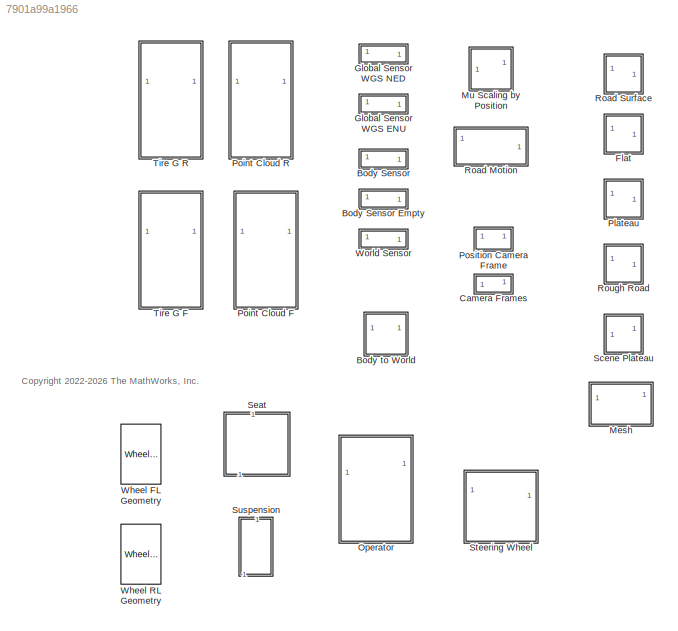
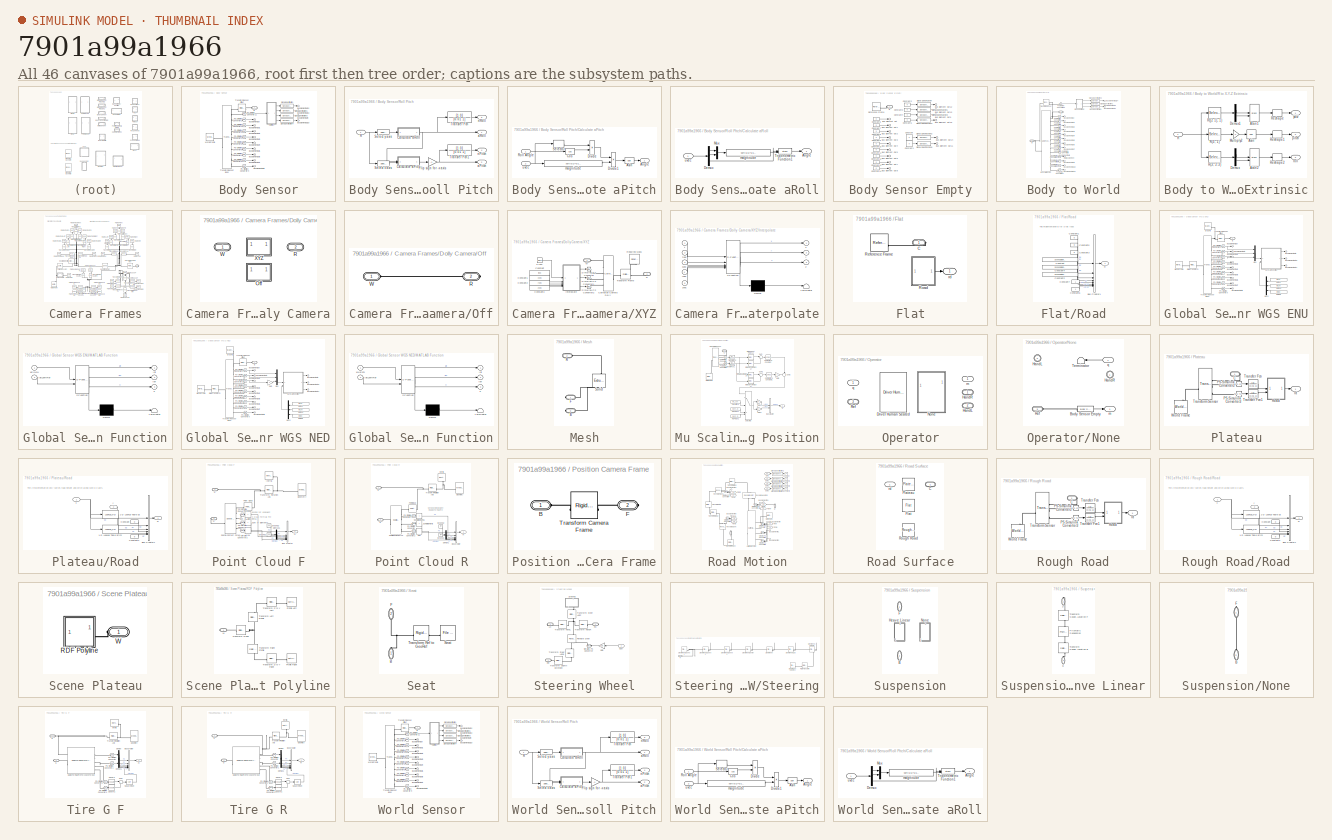
[diagram: thumbnail index - all 46 canvases of the model, root first then tree order]
MODEL slx_7901a99a1966
KIND library
CONFIG SolverName = VariableStepAuto
BLOCK [SubSystem] Body Sensor
BLOCK [SubSystem] Body Sensor Empty
BLOCK [PMIOPort] Body Sensor Empty/B
  NameLocation = top
  Side = Left
BLOCK [Outport] Body Sensor Empty/Bus Element Out
  VectorParamsAs1DForOutWhenUnconnected = off
BLOCK [Outport] Body Sensor Empty/Bus Element Out1
  VectorParamsAs1DForOutWhenUnconnected = off
BLOCK [Outport] Body Sensor Empty/Bus Element Out10
  VectorParamsAs1DForOutWhenUnconnected = off
BLOCK [Outport] Body Sensor Empty/Bus Element Out11
  VectorParamsAs1DForOutWhenUnconnected = off
BLOCK [Outport] Body Sensor Empty/Bus Element Out12
  VectorParamsAs1DForOutWhenUnconnected = off
BLOCK [Outport] Body Sensor Empty/Bus Element Out13
  VectorParamsAs1DForOutWhenUnconnected = off
BLOCK [Outport] Body Sensor Empty/Bus Element Out14
  VectorParamsAs1DForOutWhenUnconnected = off
BLOCK [Outport] Body Sensor Empty/Bus Element Out2
  VectorParamsAs1DForOutWhenUnconnected = off
BLOCK [Outport] Body Sensor Empty/Bus Element Out3
  VectorParamsAs1DForOutWhenUnconnected = off
BLOCK [Outport] Body Sensor Empty/Bus Element Out4
  VectorParamsAs1DForOutWhenUnconnected = off
BLOCK [Outport] Body Sensor Empty/Bus Element Out5
  VectorParamsAs1DForOutWhenUnconnected = off
BLOCK [Outport] Body Sensor Empty/Bus Element Out6
  VectorParamsAs1DForOutWhenUnconnected = off
BLOCK [Outport] Body Sensor Empty/Bus Element Out7
  VectorParamsAs1DForOutWhenUnconnected = off
BLOCK [Outport] Body Sensor Empty/Bus Element Out8
  VectorParamsAs1DForOutWhenUnconnected = off
BLOCK [Outport] Body Sensor Empty/Bus Element Out9
  VectorParamsAs1DForOutWhenUnconnected = off
BLOCK [Constant] Body Sensor Empty/Constant
  Value = 0
BLOCK [Constant] Body Sensor Empty/Constant1
  Value = 0
BLOCK [Constant] Body Sensor Empty/Constant10
  Value = 0
BLOCK [Constant] Body Sensor Empty/Constant11
  Value = 0
BLOCK [Constant] Body Sensor Empty/Constant12
  Value = 0
BLOCK [Constant] Body Sensor Empty/Constant13
  Value = 0
BLOCK [Constant] Body Sensor Empty/Constant14
  Value = 0
BLOCK [Constant] Body Sensor Empty/Constant2
  Value = 0
BLOCK [Constant] Body Sensor Empty/Constant3
  Value = 0
BLOCK [Constant] Body Sensor Empty/Constant4
  Value = 0
BLOCK [Constant] Body Sensor Empty/Constant5
  Value = 0
BLOCK [Constant] Body Sensor Empty/Constant6
  Value = 0
BLOCK [Constant] Body Sensor Empty/Constant7
  Value = 0
BLOCK [Constant] Body Sensor Empty/Constant8
  Value = 0
BLOCK [Constant] Body Sensor Empty/Constant9
  Value = 0
BLOCK [Reference] Body Sensor Empty/Reference Frame  REF=sm_lib/Frames and
Transforms/Reference
Frame
  SourceBlock = sm_lib/Frames and\nTransforms/Reference\nFrame
  SourceType = Reference\nFrame
BLOCK [SignalSpecification] Body Sensor Empty/Signal Specification
  Unit = rad
BLOCK [SignalSpecification] Body Sensor Empty/Signal Specification1
  Unit = rad
BLOCK [SignalSpecification] Body Sensor Empty/Signal Specification2
  Unit = rad
BLOCK [SignalSpecification] Body Sensor Empty/Signal Specification3
  Unit = rad/s
BLOCK [SignalSpecification] Body Sensor Empty/Signal Specification4
  Unit = rad/s
BLOCK [SignalSpecification] Body Sensor Empty/Signal Specification5
  Unit = rad/s
BLOCK [PMIOPort] Body Sensor/B
  NameLocation = top
  Side = Left
BLOCK [Outport] Body Sensor/Bus Element Out
  VectorParamsAs1DForOutWhenUnconnected = off
BLOCK [Outport] Body Sensor/Bus Element Out1
  VectorParamsAs1DForOutWhenUnconnected = off
BLOCK [Outport] Body Sensor/Bus Element Out10
  VectorParamsAs1DForOutWhenUnconnected = off
BLOCK [Outport] Body Sensor/Bus Element Out12
  VectorParamsAs1DForOutWhenUnconnected = off
BLOCK [Outport] Body Sensor/Bus Element Out13
  VectorParamsAs1DForOutWhenUnconnected = off
BLOCK [Outport] Body Sensor/Bus Element Out2
  VectorParamsAs1DForOutWhenUnconnected = off
BLOCK [Outport] Body Sensor/Bus Element Out3
  VectorParamsAs1DForOutWhenUnconnected = off
BLOCK [Outport] Body Sensor/Bus Element Out4
  VectorParamsAs1DForOutWhenUnconnected = off
BLOCK [Outport] Body Sensor/Bus Element Out5
  VectorParamsAs1DForOutWhenUnconnected = off
BLOCK [Outport] Body Sensor/Bus Element Out6
  VectorParamsAs1DForOutWhenUnconnected = off
BLOCK [Outport] Body Sensor/Bus Element Out7
  VectorParamsAs1DForOutWhenUnconnected = off
BLOCK [Outport] Body Sensor/Bus Element Out8
  VectorParamsAs1DForOutWhenUnconnected = off
BLOCK [Outport] Body Sensor/Bus Element Out9
  VectorParamsAs1DForOutWhenUnconnected = off
BLOCK [Reference] Body Sensor/PS-Simulink Converter1  REF=nesl_utility/PS-Simulink
Converter
  SourceBlock = nesl_utility/PS-Simulink\nConverter
  SourceType = PS-Simulink\nConverter
BLOCK [Reference] Body Sensor/PS-Simulink Converter11  REF=nesl_utility/PS-Simulink
Converter
  SourceBlock = nesl_utility/PS-Simulink\nConverter
  SourceType = PS-Simulink\nConverter
BLOCK [Reference] Body Sensor/PS-Simulink Converter2  REF=nesl_utility/PS-Simulink
Converter
  SourceBlock = nesl_utility/PS-Simulink\nConverter
  SourceType = PS-Simulink\nConverter
BLOCK [Reference] Body Sensor/PS-Simulink Converter3  REF=nesl_utility/PS-Simulink
Converter
  SourceBlock = nesl_utility/PS-Simulink\nConverter
  SourceType = PS-Simulink\nConverter
BLOCK [Reference] Body Sensor/PS-Simulink Converter4  REF=nesl_utility/PS-Simulink
Converter
  SourceBlock = nesl_utility/PS-Simulink\nConverter
  SourceType = PS-Simulink\nConverter
BLOCK [Reference] Body Sensor/PS-Simulink Converter5  REF=nesl_utility/PS-Simulink
Converter
  SourceBlock = nesl_utility/PS-Simulink\nConverter
  SourceType = PS-Simulink\nConverter
BLOCK [Reference] Body Sensor/PS-Simulink Converter6  REF=nesl_utility/PS-Simulink
Converter
  SourceBlock = nesl_utility/PS-Simulink\nConverter
  SourceType = PS-Simulink\nConverter
BLOCK [Reference] Body Sensor/PS-Simulink Converter7  REF=nesl_utility/PS-Simulink
Converter
  SourceBlock = nesl_utility/PS-Simulink\nConverter
  SourceType = PS-Simulink\nConverter
BLOCK [Reference] Body Sensor/PS-Simulink Converter8  REF=nesl_utility/PS-Simulink
Converter
  SourceBlock = nesl_utility/PS-Simulink\nConverter
  SourceType = PS-Simulink\nConverter
BLOCK [Reference] Body Sensor/PS-Simulink Converter9  REF=nesl_utility/PS-Simulink
Converter
  SourceBlock = nesl_utility/PS-Simulink\nConverter
  SourceType = PS-Simulink\nConverter
BLOCK [SubSystem] Body Sensor/Roll Pitch
BLOCK [SubSystem] Body Sensor/Roll Pitch/Calculate aPitch
BLOCK [Outport] Body Sensor/Roll Pitch/Calculate aPitch/Angle
  VectorParamsAs1DForOutWhenUnconnected = off
BLOCK [Trigonometry] Body Sensor/Roll Pitch/Calculate aPitch/Asin
  Operator = asin
BLOCK [Trigonometry] Body Sensor/Roll Pitch/Calculate aPitch/Cos
  Operator = cos
BLOCK [Product] Body Sensor/Roll Pitch/Calculate aPitch/Divide
  Inputs = */
BLOCK [Product] Body Sensor/Roll Pitch/Calculate aPitch/Divide1
  Inputs = */
BLOCK [Inport] Body Sensor/Roll Pitch/Calculate aPitch/Roll Angle
BLOCK [Selector] Body Sensor/Roll Pitch/Calculate aPitch/Selector
  IndexOptions = Index vector (dialog)
  Indices = [3]
  InputPortWidth = 3
  NameLocation = top
  OutputSizes = 1
BLOCK [Fcn] Body Sensor/Roll Pitch/Calculate aPitch/magnitude
  Expr = sqrt(u(1)*u(1)+u(2)*u(2)+u(3)*u(3))
BLOCK [Inport] Body Sensor/Roll Pitch/Calculate aPitch/uvec
  Port = 2
BLOCK [SubSystem] Body Sensor/Roll Pitch/Calculate aRoll
BLOCK [Outport] Body Sensor/Roll Pitch/Calculate aRoll/Angle
  VectorParamsAs1DForOutWhenUnconnected = off
BLOCK [Demux] Body Sensor/Roll Pitch/Calculate aRoll/Demux
  Outputs = 3
BLOCK [Mux] Body Sensor/Roll Pitch/Calculate aRoll/Mux
  DisplayOption = bar
  Inputs = 2
BLOCK [Trigonometry] Body Sensor/Roll Pitch/Calculate aRoll/Trigonometric Function1
  Operator = atan2
BLOCK [Fcn] Body Sensor/Roll Pitch/Calculate aRoll/magnitude
  Expr = sqrt(u(1)*u(1)+u(2)*u(2))
BLOCK [Inport] Body Sensor/Roll Pitch/Calculate aRoll/uvec
BLOCK [Gain] Body Sensor/Roll Pitch/Flip sign for -x axis 
  Gain = -1
BLOCK [Inport] Body Sensor/Roll Pitch/R
BLOCK [Selector] Body Sensor/Roll Pitch/Select x axis
  IndexOptions = Index vector (dialog),Index vector (dialog)
  Indices = [1 2 3],1
  InputPortWidth = 2
  NumberOfDimensions = 2
  OutputSizes = 1,1
BLOCK [Selector] Body Sensor/Roll Pitch/Select y axis
  IndexOptions = Index vector (dialog),Index vector (dialog)
  Indices = [1 2 3],2
  InputPortWidth = 2
  NumberOfDimensions = 2
  OutputSizes = 1,1
BLOCK [TransferFcn] Body Sensor/Roll Pitch/Transfer Fcn
  Denominator = [0.01 1]
  NameLocation = top
  Numerator = [1 0]
BLOCK [TransferFcn] Body Sensor/Roll Pitch/Transfer Fcn1
  Denominator = [0.01 1]
  NameLocation = top
  Numerator = [1 0]
BLOCK [Outport] Body Sensor/Roll Pitch/aPitch
  Port = 2
  VectorParamsAs1DForOutWhenUnconnected = off
BLOCK [Outport] Body Sensor/Roll Pitch/aRoll
  VectorParamsAs1DForOutWhenUnconnected = off
BLOCK [Outport] Body Sensor/Roll Pitch/nPitch
  Port = 4
  VectorParamsAs1DForOutWhenUnconnected = off
BLOCK [Outport] Body Sensor/Roll Pitch/nRoll
  Port = 3
  VectorParamsAs1DForOutWhenUnconnected = off
BLOCK [SignalSpecification] Body Sensor/Signal Specification
  Unit = rad
BLOCK [SignalSpecification] Body Sensor/Signal Specification1
  Unit = rad
BLOCK [SignalSpecification] Body Sensor/Signal Specification3
  Unit = rad/s
BLOCK [SignalSpecification] Body Sensor/Signal Specification4
  Unit = rad/s
BLOCK [Reference] Body Sensor/Transform Sensor Body  REF=sm_lib/Frames and
Transforms/Transform
Sensor
  AttributesFormatString = %<MeasurementFrame>
  SourceBlock = sm_lib/Frames and\nTransforms/Transform\nSensor
  SourceType = Transform\nSensor
BLOCK [Reference] Body Sensor/Transform Sensor Offset  REF=sm_lib/Frames and
Transforms/Rigid
Transform
  NameLocation = top
  SourceBlock = sm_lib/Frames and\nTransforms/Rigid\nTransform
  SourceType = Rigid\nTransform
BLOCK [Reference] Body Sensor/World Frame  REF=sm_lib/Frames and
Transforms/World Frame
  SourceBlock = sm_lib/Frames and\nTransforms/World Frame
  SourceType = World Frame
BLOCK [SubSystem] Body to World
BLOCK [PMIOPort] Body to World/B
  Port = 2
  Side = Left
BLOCK [Reference] Body to World/Body World Joint  REF=sm_lib/Joints/6-DOF Joint
  SourceBlock = sm_lib/Joints/6-DOF Joint
  SourceType = 6-DOF Joint
BLOCK [Outport] Body to World/Bus Element Out
  VectorParamsAs1DForOutWhenUnconnected = off
BLOCK [Outport] Body to World/Bus Element Out1
  VectorParamsAs1DForOutWhenUnconnected = off
BLOCK [Outport] Body to World/Bus Element Out10
  VectorParamsAs1DForOutWhenUnconnected = off
BLOCK [Outport] Body to World/Bus Element Out11
  VectorParamsAs1DForOutWhenUnconnected = off
BLOCK [Outport] Body to World/Bus Element Out12
  VectorParamsAs1DForOutWhenUnconnected = off
BLOCK [Outport] Body to World/Bus Element Out13
  VectorParamsAs1DForOutWhenUnconnected = off
BLOCK [Outport] Body to World/Bus Element Out14
  VectorParamsAs1DForOutWhenUnconnected = off
BLOCK [Outport] Body to World/Bus Element Out2
  VectorParamsAs1DForOutWhenUnconnected = off
BLOCK [Outport] Body to World/Bus Element Out3
  VectorParamsAs1DForOutWhenUnconnected = off
BLOCK [Outport] Body to World/Bus Element Out4
  VectorParamsAs1DForOutWhenUnconnected = off
BLOCK [Outport] Body to World/Bus Element Out5
  VectorParamsAs1DForOutWhenUnconnected = off
BLOCK [Outport] Body to World/Bus Element Out6
  VectorParamsAs1DForOutWhenUnconnected = off
BLOCK [Outport] Body to World/Bus Element Out7
  VectorParamsAs1DForOutWhenUnconnected = off
BLOCK [Outport] Body to World/Bus Element Out8
  VectorParamsAs1DForOutWhenUnconnected = off
BLOCK [Outport] Body to World/Bus Element Out9
  VectorParamsAs1DForOutWhenUnconnected = off
BLOCK [PMIOPort] Body to World/F
  Side = Right
BLOCK [Outport] Body to World/Out Bus Element
  VectorParamsAs1DForOutWhenUnconnected = off
BLOCK [Reference] Body to World/PS-Simulink Converter  REF=nesl_utility/PS-Simulink
Converter
  SourceBlock = nesl_utility/PS-Simulink\nConverter
  SourceType = PS-Simulink\nConverter
BLOCK [Reference] Body to World/PS-Simulink Converter1  REF=nesl_utility/PS-Simulink
Converter
  SourceBlock = nesl_utility/PS-Simulink\nConverter
  SourceType = PS-Simulink\nConverter
BLOCK [Reference] Body to World/PS-Simulink Converter10  REF=nesl_utility/PS-Simulink
Converter
  SourceBlock = nesl_utility/PS-Simulink\nConverter
  SourceType = PS-Simulink\nConverter
BLOCK [Reference] Body to World/PS-Simulink Converter11  REF=nesl_utility/PS-Simulink
Converter
  SourceBlock = nesl_utility/PS-Simulink\nConverter
  SourceType = PS-Simulink\nConverter
BLOCK [Reference] Body to World/PS-Simulink Converter12  REF=nesl_utility/PS-Simulink
Converter
  SourceBlock = nesl_utility/PS-Simulink\nConverter
  SourceType = PS-Simulink\nConverter
BLOCK [Reference] Body to World/PS-Simulink Converter13  REF=nesl_utility/PS-Simulink
Converter
  SourceBlock = nesl_utility/PS-Simulink\nConverter
  SourceType = PS-Simulink\nConverter
BLOCK [Reference] Body to World/PS-Simulink Converter2  REF=nesl_utility/PS-Simulink
Converter
  SourceBlock = nesl_utility/PS-Simulink\nConverter
  SourceType = PS-Simulink\nConverter
BLOCK [Reference] Body to World/PS-Simulink Converter3  REF=nesl_utility/PS-Simulink
Converter
  SourceBlock = nesl_utility/PS-Simulink\nConverter
  SourceType = PS-Simulink\nConverter
BLOCK [Reference] Body to World/PS-Simulink Converter4  REF=nesl_utility/PS-Simulink
Converter
  SourceBlock = nesl_utility/PS-Simulink\nConverter
  SourceType = PS-Simulink\nConverter
BLOCK [Reference] Body to World/PS-Simulink Converter5  REF=nesl_utility/PS-Simulink
Converter
  SourceBlock = nesl_utility/PS-Simulink\nConverter
  SourceType = PS-Simulink\nConverter
BLOCK [Reference] Body to World/PS-Simulink Converter6  REF=nesl_utility/PS-Simulink
Converter
  SourceBlock = nesl_utility/PS-Simulink\nConverter
  SourceType = PS-Simulink\nConverter
BLOCK [Reference] Body to World/PS-Simulink Converter7  REF=nesl_utility/PS-Simulink
Converter
  SourceBlock = nesl_utility/PS-Simulink\nConverter
  SourceType = PS-Simulink\nConverter
BLOCK [Reference] Body to World/PS-Simulink Converter8  REF=nesl_utility/PS-Simulink
Converter
  SourceBlock = nesl_utility/PS-Simulink\nConverter
  SourceType = PS-Simulink\nConverter
BLOCK [Reference] Body to World/PS-Simulink Converter9  REF=nesl_utility/PS-Simulink
Converter
  SourceBlock = nesl_utility/PS-Simulink\nConverter
  SourceType = PS-Simulink\nConverter
BLOCK [SubSystem] Body to World/R to X-Y-Z Extrinsic
BLOCK [Trigonometry] Body to World/R to X-Y-Z Extrinsic/Asin
  Operator = asin
BLOCK [Trigonometry] Body to World/R to X-Y-Z Extrinsic/Atan1
  Operator = atan2
BLOCK [Trigonometry] Body to World/R to X-Y-Z Extrinsic/Atan2
  Operator = atan2
BLOCK [Demux] Body to World/R to X-Y-Z Extrinsic/Demux
  Outputs = 2
BLOCK [Demux] Body to World/R to X-Y-Z Extrinsic/Demux1
  Outputs = 2
BLOCK [Gain] Body to World/R to X-Y-Z Extrinsic/Multiply2
  Gain = -1
BLOCK [Inport] Body to World/R to X-Y-Z Extrinsic/R
BLOCK [Selector] Body to World/R to X-Y-Z Extrinsic/R(3, 1)
  IndexOptions = Index vector (dialog),Index vector (dialog)
  Indices = 3,1
  InputPortWidth = 3
  NumberOfDimensions = 2
  OutputSizes = 1,1
BLOCK [Selector] Body to World/R to X-Y-Z Extrinsic/R(3, 2:3)
  IndexOptions = Index vector (dialog),Index vector (dialog)
  Indices = 3,[2 3]
  InputPortWidth = 3
  NumberOfDimensions = 2
  OutputSizes = 1,1
BLOCK [Selector] Body to World/R to X-Y-Z Extrinsic/R([2 1], 1)
  IndexOptions = Index vector (dialog),Index vector (dialog)
  Indices = [2 1],1
  InputPortWidth = 3
  NumberOfDimensions = 2
  OutputSizes = 1,1
BLOCK [Reshape] Body to World/R to X-Y-Z Extrinsic/Reshape
BLOCK [Reshape] Body to World/R to X-Y-Z Extrinsic/Reshape1
BLOCK [Reshape] Body to World/R to X-Y-Z Extrinsic/Reshape2
  OutputDimensionality = Customize
  OutputDimensions = 1
BLOCK [Outport] Body to World/R to X-Y-Z Extrinsic/pitch
  Port = 2
  VectorParamsAs1DForOutWhenUnconnected = off
BLOCK [Outport] Body to World/R to X-Y-Z Extrinsic/roll
  Port = 3
  VectorParamsAs1DForOutWhenUnconnected = off
BLOCK [Outport] Body to World/R to X-Y-Z Extrinsic/yaw
  VectorParamsAs1DForOutWhenUnconnected = off
BLOCK [SignalSpecification] Body to World/Signal Specification
  Unit = rad
BLOCK [SignalSpecification] Body to World/Signal Specification1
  Unit = rad
BLOCK [SignalSpecification] Body to World/Signal Specification2
  Unit = rad
BLOCK [Reference] Body to World/Transform Sensor  REF=sm_lib/Frames and
Transforms/Transform
Sensor
  SourceBlock = sm_lib/Frames and\nTransforms/Transform\nSensor
  SourceType = Transform\nSensor
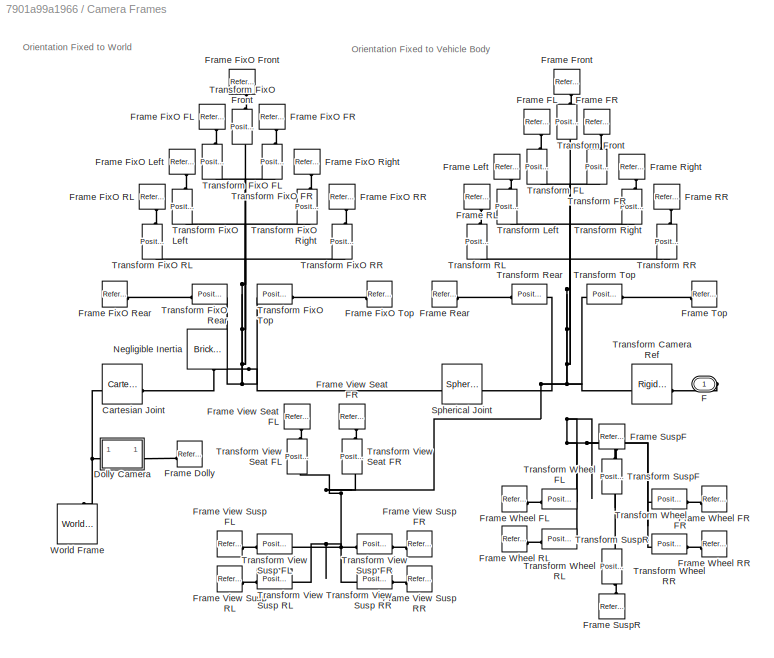
BLOCK [SubSystem] Camera Frames
BLOCK [Reference] Camera Frames/Cartesian Joint  REF=sm_lib/Joints/Cartesian
Joint
  SourceBlock = sm_lib/Joints/Cartesian\nJoint
  SourceType = Cartesian\nJoint
BLOCK [SubSystem] Camera Frames/Dolly Camera
  AttributesFormatString = %<ActiveVariant>
  LabelModeActiveChoice = Off
  Variant = on
  VariantControl = Variant1
  VariantControlMode = label
BLOCK [PMIOPort] Camera Frames/Dolly Camera/ R
  Port = 2
  Side = Right
BLOCK [PMIOPort] Camera Frames/Dolly Camera/ W
  Side = Left
BLOCK [SubSystem] Camera Frames/Dolly Camera/Off
  VariantControl = Off
BLOCK [PMIOPort] Camera Frames/Dolly Camera/Off/R
  NameLocation = top
  Port = 2
  Side = Right
BLOCK [PMIOPort] Camera Frames/Dolly Camera/Off/W
  Side = Left
BLOCK [SubSystem] Camera Frames/Dolly Camera/XYZ
  VariantControl = XYZ
BLOCK [Reference] Camera Frames/Dolly Camera/XYZ/Cartesian Camera Dolly  REF=sm_lib/Joints/Cartesian
Joint
  SourceBlock = sm_lib/Joints/Cartesian\nJoint
  SourceType = Cartesian\nJoint
BLOCK [Clock] Camera Frames/Dolly Camera/XYZ/Clock
BLOCK [Constant] Camera Frames/Dolly Camera/XYZ/Constant
  Value = tvec
BLOCK [Constant] Camera Frames/Dolly Camera/XYZ/Constant1
  Value = xvec
BLOCK [Constant] Camera Frames/Dolly Camera/XYZ/Constant2
  Value = yvec
BLOCK [Constant] Camera Frames/Dolly Camera/XYZ/Constant3
  Value = zvec
BLOCK [SubSystem] Camera Frames/Dolly Camera/XYZ/Interpolate
  ErrorFcn = Stateflow.Translate.translate
  PermitHierarchicalResolution = ExplicitOnly
  SFBlockType = MATLAB Function
  TreatAsAtomicUnit = on
BLOCK [Demux] Camera Frames/Dolly Camera/XYZ/Interpolate/ Demux 
  Outputs = 1
BLOCK [S-Function] Camera Frames/Dolly Camera/XYZ/Interpolate/ SFunction 
  EnableBusSupport = off
  FunctionName = sf_sfun
  PortCounts = [5 4]
  SFcnIsStateOwnerBlock = off
  SFunctionDeploymentMode = off
  Tag = Stateflow S-Function 2
BLOCK [Terminator] Camera Frames/Dolly Camera/XYZ/Interpolate/ Terminator 
BLOCK [Inport] Camera Frames/Dolly Camera/XYZ/Interpolate/t
BLOCK [Inport] Camera Frames/Dolly Camera/XYZ/Interpolate/tvec
  Port = 2
BLOCK [Outport] Camera Frames/Dolly Camera/XYZ/Interpolate/x
BLOCK [Inport] Camera Frames/Dolly Camera/XYZ/Interpolate/xvec
  Port = 3
BLOCK [Outport] Camera Frames/Dolly Camera/XYZ/Interpolate/y
  Port = 2
BLOCK [Inport] Camera Frames/Dolly Camera/XYZ/Interpolate/yvec
  Port = 4
BLOCK [Outport] Camera Frames/Dolly Camera/XYZ/Interpolate/z
  Port = 3
BLOCK [Inport] Camera Frames/Dolly Camera/XYZ/Interpolate/zvec
  Port = 5
BLOCK [PMIOPort] Camera Frames/Dolly Camera/XYZ/R
  NameLocation = top
  Port = 2
  Side = Right
BLOCK [Reference] Camera Frames/Dolly Camera/XYZ/Required Mass  REF=sm_lib/Body Elements/Spherical Solid
  NameLocation = left
  SourceBlock = sm_lib/Body Elements/Spherical Solid
  SourceType = Spherical Solid
BLOCK [Reference] Camera Frames/Dolly Camera/XYZ/Simulink-PS Converter  REF=nesl_utility/Simulink-PS
Converter
  SourceBlock = nesl_utility/Simulink-PS\nConverter
  SourceType = Simulink-PS\nConverter
BLOCK [Reference] Camera Frames/Dolly Camera/XYZ/Simulink-PS Converter1  REF=nesl_utility/Simulink-PS
Converter
  SourceBlock = nesl_utility/Simulink-PS\nConverter
  SourceType = Simulink-PS\nConverter
BLOCK [Reference] Camera Frames/Dolly Camera/XYZ/Simulink-PS Converter2  REF=nesl_utility/Simulink-PS
Converter
  SourceBlock = nesl_utility/Simulink-PS\nConverter
  SourceType = Simulink-PS\nConverter
BLOCK [Reference] Camera Frames/Dolly Camera/XYZ/Transform Frame  REF=sm_lib/Frames and
Transforms/Rigid
Transform
  SourceBlock = sm_lib/Frames and\nTransforms/Rigid\nTransform
  SourceType = Rigid\nTransform
BLOCK [PMIOPort] Camera Frames/Dolly Camera/XYZ/W
  Side = Left
BLOCK [PMIOPort] Camera Frames/F
  Side = Right
BLOCK [Reference] Camera Frames/Frame Dolly  REF=sm_lib/Frames and
Transforms/Reference
Frame
  SourceBlock = sm_lib/Frames and\nTransforms/Reference\nFrame
  SourceType = Reference\nFrame
BLOCK [Reference] Camera Frames/Frame FL  REF=sm_lib/Frames and
Transforms/Reference
Frame
  NameLocation = left
  SourceBlock = sm_lib/Frames and\nTransforms/Reference\nFrame
  SourceType = Reference\nFrame
BLOCK [Reference] Camera Frames/Frame FR  REF=sm_lib/Frames and
Transforms/Reference
Frame
  NameLocation = right
  SourceBlock = sm_lib/Frames and\nTransforms/Reference\nFrame
  SourceType = Reference\nFrame
BLOCK [Reference] Camera Frames/Frame FixO FL  REF=sm_lib/Frames and
Transforms/Reference
Frame
  NameLocation = left
  SourceBlock = sm_lib/Frames and\nTransforms/Reference\nFrame
  SourceType = Reference\nFrame
BLOCK [Reference] Camera Frames/Frame FixO FR  REF=sm_lib/Frames and
Transforms/Reference
Frame
  NameLocation = right
  SourceBlock = sm_lib/Frames and\nTransforms/Reference\nFrame
  SourceType = Reference\nFrame
BLOCK [Reference] Camera Frames/Frame FixO Front  REF=sm_lib/Frames and
Transforms/Reference
Frame
  NameLocation = right
  SourceBlock = sm_lib/Frames and\nTransforms/Reference\nFrame
  SourceType = Reference\nFrame
BLOCK [Reference] Camera Frames/Frame FixO Left  REF=sm_lib/Frames and
Transforms/Reference
Frame
  NameLocation = left
  SourceBlock = sm_lib/Frames and\nTransforms/Reference\nFrame
  SourceType = Reference\nFrame
BLOCK [Reference] Camera Frames/Frame FixO RL  REF=sm_lib/Frames and
Transforms/Reference
Frame
  NameLocation = left
  SourceBlock = sm_lib/Frames and\nTransforms/Reference\nFrame
  SourceType = Reference\nFrame
BLOCK [Reference] Camera Frames/Frame FixO RR  REF=sm_lib/Frames and
Transforms/Reference
Frame
  NameLocation = right
  SourceBlock = sm_lib/Frames and\nTransforms/Reference\nFrame
  SourceType = Reference\nFrame
BLOCK [Reference] Camera Frames/Frame FixO Rear  REF=sm_lib/Frames and
Transforms/Reference
Frame
  NameLocation = top
  SourceBlock = sm_lib/Frames and\nTransforms/Reference\nFrame
  SourceType = Reference\nFrame
BLOCK [Reference] Camera Frames/Frame FixO Right  REF=sm_lib/Frames and
Transforms/Reference
Frame
  NameLocation = right
  SourceBlock = sm_lib/Frames and\nTransforms/Reference\nFrame
  SourceType = Reference\nFrame
BLOCK [Reference] Camera Frames/Frame FixO Top  REF=sm_lib/Frames and
Transforms/Reference
Frame
  NameLocation = top
  SourceBlock = sm_lib/Frames and\nTransforms/Reference\nFrame
  SourceType = Reference\nFrame
BLOCK [Reference] Camera Frames/Frame Front  REF=sm_lib/Frames and
Transforms/Reference
Frame
  NameLocation = right
  SourceBlock = sm_lib/Frames and\nTransforms/Reference\nFrame
  SourceType = Reference\nFrame
BLOCK [Reference] Camera Frames/Frame Left  REF=sm_lib/Frames and
Transforms/Reference
Frame
  NameLocation = left
  SourceBlock = sm_lib/Frames and\nTransforms/Reference\nFrame
  SourceType = Reference\nFrame
BLOCK [Reference] Camera Frames/Frame RL  REF=sm_lib/Frames and
Transforms/Reference
Frame
  NameLocation = left
  SourceBlock = sm_lib/Frames and\nTransforms/Reference\nFrame
  SourceType = Reference\nFrame
BLOCK [Reference] Camera Frames/Frame RR  REF=sm_lib/Frames and
Transforms/Reference
Frame
  NameLocation = right
  SourceBlock = sm_lib/Frames and\nTransforms/Reference\nFrame
  SourceType = Reference\nFrame
BLOCK [Reference] Camera Frames/Frame Rear  REF=sm_lib/Frames and
Transforms/Reference
Frame
  NameLocation = top
  SourceBlock = sm_lib/Frames and\nTransforms/Reference\nFrame
  SourceType = Reference\nFrame
BLOCK [Reference] Camera Frames/Frame Right  REF=sm_lib/Frames and
Transforms/Reference
Frame
  NameLocation = right
  SourceBlock = sm_lib/Frames and\nTransforms/Reference\nFrame
  SourceType = Reference\nFrame
BLOCK [Reference] Camera Frames/Frame SuspF  REF=sm_lib/Frames and
Transforms/Reference
Frame
  NameLocation = right
  SourceBlock = sm_lib/Frames and\nTransforms/Reference\nFrame
  SourceType = Reference\nFrame
BLOCK [Reference] Camera Frames/Frame SuspR  REF=sm_lib/Frames and
Transforms/Reference
Frame
  NameLocation = right
  SourceBlock = sm_lib/Frames and\nTransforms/Reference\nFrame
  SourceType = Reference\nFrame
BLOCK [Reference] Camera Frames/Frame Top  REF=sm_lib/Frames and
Transforms/Reference
Frame
  NameLocation = top
  SourceBlock = sm_lib/Frames and\nTransforms/Reference\nFrame
  SourceType = Reference\nFrame
BLOCK [Reference] Camera Frames/Frame View Seat FL  REF=sm_lib/Frames and
Transforms/Reference
Frame
  NameLocation = left
  SourceBlock = sm_lib/Frames and\nTransforms/Reference\nFrame
  SourceType = Reference\nFrame
BLOCK [Reference] Camera Frames/Frame View Seat FR  REF=sm_lib/Frames and
Transforms/Reference
Frame
  NameLocation = right
  SourceBlock = sm_lib/Frames and\nTransforms/Reference\nFrame
  SourceType = Reference\nFrame
BLOCK [Reference] Camera Frames/Frame View Susp FL  REF=sm_lib/Frames and
Transforms/Reference
Frame
  NameLocation = top
  SourceBlock = sm_lib/Frames and\nTransforms/Reference\nFrame
  SourceType = Reference\nFrame
BLOCK [Reference] Camera Frames/Frame View Susp FR  REF=sm_lib/Frames and
Transforms/Reference
Frame
  NameLocation = top
  SourceBlock = sm_lib/Frames and\nTransforms/Reference\nFrame
  SourceType = Reference\nFrame
BLOCK [Reference] Camera Frames/Frame View Susp RL  REF=sm_lib/Frames and
Transforms/Reference
Frame
  SourceBlock = sm_lib/Frames and\nTransforms/Reference\nFrame
  SourceType = Reference\nFrame
BLOCK [Reference] Camera Frames/Frame View Susp RR  REF=sm_lib/Frames and
Transforms/Reference
Frame
  SourceBlock = sm_lib/Frames and\nTransforms/Reference\nFrame
  SourceType = Reference\nFrame
BLOCK [Reference] Camera Frames/Frame Wheel FL  REF=sm_lib/Frames and
Transforms/Reference
Frame
  NameLocation = top
  SourceBlock = sm_lib/Frames and\nTransforms/Reference\nFrame
  SourceType = Reference\nFrame
BLOCK [Reference] Camera Frames/Frame Wheel FR  REF=sm_lib/Frames and
Transforms/Reference
Frame
  NameLocation = top
  SourceBlock = sm_lib/Frames and\nTransforms/Reference\nFrame
  SourceType = Reference\nFrame
BLOCK [Reference] Camera Frames/Frame Wheel RL  REF=sm_lib/Frames and
Transforms/Reference
Frame
  SourceBlock = sm_lib/Frames and\nTransforms/Reference\nFrame
  SourceType = Reference\nFrame
BLOCK [Reference] Camera Frames/Frame Wheel RR  REF=sm_lib/Frames and
Transforms/Reference
Frame
  SourceBlock = sm_lib/Frames and\nTransforms/Reference\nFrame
  SourceType = Reference\nFrame
BLOCK [Reference] Camera Frames/Negligible Inertia  REF=sm_lib/Body Elements/Brick Solid
  NameLocation = left
  SourceBlock = sm_lib/Body Elements/Brick Solid
  SourceType = Brick Solid
BLOCK [Reference] Camera Frames/Spherical Joint  REF=sm_lib/Joints/Spherical
Joint
  NameLocation = top
  SourceBlock = sm_lib/Joints/Spherical\nJoint
  SourceType = Spherical\nJoint
BLOCK [Reference] Camera Frames/Transform Camera Ref  REF=sm_lib/Frames and
Transforms/Rigid
Transform
  NameLocation = top
  SourceBlock = sm_lib/Frames and\nTransforms/Rigid\nTransform
  SourceType = Rigid\nTransform
BLOCK [Reference] Camera Frames/Transform FL  REF=$bdroot/Position Camera Frame
  NameLocation = left
  SourceBlock = $bdroot/Position Camera Frame
  SourceType = Define Camera Frame
BLOCK [Reference] Camera Frames/Transform FR  REF=$bdroot/Position Camera Frame
  NameLocation = left
  SourceBlock = $bdroot/Position Camera Frame
  SourceType = Define Camera Frame
BLOCK [Reference] Camera Frames/Transform FixO FL  REF=$bdroot/Position Camera Frame
  NameLocation = left
  SourceBlock = $bdroot/Position Camera Frame
  SourceType = Define Camera Frame
BLOCK [Reference] Camera Frames/Transform FixO FR  REF=$bdroot/Position Camera Frame
  NameLocation = left
  SourceBlock = $bdroot/Position Camera Frame
  SourceType = Define Camera Frame
BLOCK [Reference] Camera Frames/Transform FixO Front  REF=$bdroot/Position Camera Frame
  NameLocation = left
  SourceBlock = $bdroot/Position Camera Frame
  SourceType = Define Camera Frame
BLOCK [Reference] Camera Frames/Transform FixO Left  REF=$bdroot/Position Camera Frame
  NameLocation = left
  SourceBlock = $bdroot/Position Camera Frame
  SourceType = Define Camera Frame
BLOCK [Reference] Camera Frames/Transform FixO RL  REF=$bdroot/Position Camera Frame
  NameLocation = left
  SourceBlock = $bdroot/Position Camera Frame
  SourceType = Define Camera Frame
BLOCK [Reference] Camera Frames/Transform FixO RR  REF=$bdroot/Position Camera Frame
  NameLocation = right
  SourceBlock = $bdroot/Position Camera Frame
  SourceType = Define Camera Frame
BLOCK [Reference] Camera Frames/Transform FixO Rear  REF=$bdroot/Position Camera Frame
  SourceBlock = $bdroot/Position Camera Frame
  SourceType = Define Camera Frame
BLOCK [Reference] Camera Frames/Transform FixO Right  REF=$bdroot/Position Camera Frame
  NameLocation = right
  SourceBlock = $bdroot/Position Camera Frame
  SourceType = Define Camera Frame
BLOCK [Reference] Camera Frames/Transform FixO Top  REF=$bdroot/Position Camera Frame
  NameLocation = top
  SourceBlock = $bdroot/Position Camera Frame
  SourceType = Define Camera Frame
BLOCK [Reference] Camera Frames/Transform Front  REF=$bdroot/Position Camera Frame
  NameLocation = left
  SourceBlock = $bdroot/Position Camera Frame
  SourceType = Define Camera Frame
BLOCK [Reference] Camera Frames/Transform Left  REF=$bdroot/Position Camera Frame
  NameLocation = left
  SourceBlock = $bdroot/Position Camera Frame
  SourceType = Define Camera Frame
BLOCK [Reference] Camera Frames/Transform RL  REF=$bdroot/Position Camera Frame
  NameLocation = left
  SourceBlock = $bdroot/Position Camera Frame
  SourceType = Define Camera Frame
BLOCK [Reference] Camera Frames/Transform RR  REF=$bdroot/Position Camera Frame
  NameLocation = left
  SourceBlock = $bdroot/Position Camera Frame
  SourceType = Define Camera Frame
BLOCK [Reference] Camera Frames/Transform Rear  REF=$bdroot/Position Camera Frame
  SourceBlock = $bdroot/Position Camera Frame
  SourceType = Define Camera Frame
BLOCK [Reference] Camera Frames/Transform Right  REF=$bdroot/Position Camera Frame
  NameLocation = left
  SourceBlock = $bdroot/Position Camera Frame
  SourceType = Define Camera Frame
BLOCK [Reference] Camera Frames/Transform SuspF  REF=$bdroot/Position Camera Frame
  NameLocation = left
  SourceBlock = $bdroot/Position Camera Frame
  SourceType = Define Camera Frame
BLOCK [Reference] Camera Frames/Transform SuspR  REF=$bdroot/Position Camera Frame
  NameLocation = left
  SourceBlock = $bdroot/Position Camera Frame
  SourceType = Define Camera Frame
BLOCK [Reference] Camera Frames/Transform Top  REF=$bdroot/Position Camera Frame
  SourceBlock = $bdroot/Position Camera Frame
  SourceType = Define Camera Frame
BLOCK [Reference] Camera Frames/Transform View Seat FL  REF=$bdroot/Position Camera Frame
  NameLocation = left
  SourceBlock = $bdroot/Position Camera Frame
  SourceType = Define Camera Frame
BLOCK [Reference] Camera Frames/Transform View Seat FR  REF=$bdroot/Position Camera Frame
  NameLocation = right
  SourceBlock = $bdroot/Position Camera Frame
  SourceType = Define Camera Frame
BLOCK [Reference] Camera Frames/Transform View Susp FL  REF=$bdroot/Position Camera Frame
  SourceBlock = $bdroot/Position Camera Frame
  SourceType = Define Camera Frame
BLOCK [Reference] Camera Frames/Transform View Susp FR  REF=$bdroot/Position Camera Frame
  NameLocation = top
  SourceBlock = $bdroot/Position Camera Frame
  SourceType = Define Camera Frame
BLOCK [Reference] Camera Frames/Transform View Susp RL  REF=$bdroot/Position Camera Frame
  SourceBlock = $bdroot/Position Camera Frame
  SourceType = Define Camera Frame
BLOCK [Reference] Camera Frames/Transform View Susp RR  REF=$bdroot/Position Camera Frame
  SourceBlock = $bdroot/Position Camera Frame
  SourceType = Define Camera Frame
BLOCK [Reference] Camera Frames/Transform Wheel FL  REF=$bdroot/Position Camera Frame
  SourceBlock = $bdroot/Position Camera Frame
  SourceType = Define Camera Frame
BLOCK [Reference] Camera Frames/Transform Wheel FR  REF=$bdroot/Position Camera Frame
  NameLocation = top
  SourceBlock = $bdroot/Position Camera Frame
  SourceType = Define Camera Frame
BLOCK [Reference] Camera Frames/Transform Wheel RL  REF=$bdroot/Position Camera Frame
  SourceBlock = $bdroot/Position Camera Frame
  SourceType = Define Camera Frame
BLOCK [Reference] Camera Frames/Transform Wheel RR  REF=$bdroot/Position Camera Frame
  SourceBlock = $bdroot/Position Camera Frame
  SourceType = Define Camera Frame
BLOCK [Reference] Camera Frames/World Frame  REF=sm_lib/Frames and
Transforms/World Frame
  NameLocation = right
  SourceBlock = sm_lib/Frames and\nTransforms/World Frame
  SourceType = World Frame
BLOCK [SubSystem] Flat
BLOCK [PMIOPort] Flat/C
  Side = Right
BLOCK [Reference] Flat/Reference Frame  REF=sm_lib/Frames and
Transforms/Reference
Frame
  SourceBlock = sm_lib/Frames and\nTransforms/Reference\nFrame
  SourceType = Reference\nFrame
BLOCK [SubSystem] Flat/Road
BLOCK [BusCreator] Flat/Road/Bus Creator1
  DisplayOption = bar
  InheritFromInputs = on
  Inputs = 8
BLOCK [Constant] Flat/Road/Constant
  Value = SceneData.Reference.roll
BLOCK [Constant] Flat/Road/Constant1
  Value = 0
BLOCK [Constant] Flat/Road/Constant2
  Value = SceneData.Reference.yaw
BLOCK [Constant] Flat/Road/Constant3
  Value = 0
BLOCK [Constant] Flat/Road/Constant4
  Value = SceneData.Reference.pitch
BLOCK [Constant] Flat/Road/Constant5
  Value = 0
BLOCK [Constant] Flat/Road/Constant6
BLOCK [Constant] Flat/Road/Constant7
BLOCK [Outport] Flat/Road/R
BLOCK [Outport] Flat/rd
BLOCK [SubSystem] Global Sensor WGS ENU
BLOCK [PMIOPort] Global Sensor WGS ENU/B
  NameLocation = top
  Side = Left
BLOCK [Outport] Global Sensor WGS ENU/Bus Element Out
  VectorParamsAs1DForOutWhenUnconnected = off
BLOCK [Outport] Global Sensor WGS ENU/Bus Element Out1
  VectorParamsAs1DForOutWhenUnconnected = off
BLOCK [Outport] Global Sensor WGS ENU/Bus Element Out10
  VectorParamsAs1DForOutWhenUnconnected = off
BLOCK [Outport] Global Sensor WGS ENU/Bus Element Out11
  VectorParamsAs1DForOutWhenUnconnected = off
BLOCK [Outport] Global Sensor WGS ENU/Bus Element Out2
  VectorParamsAs1DForOutWhenUnconnected = off
BLOCK [Outport] Global Sensor WGS ENU/Bus Element Out3
  VectorParamsAs1DForOutWhenUnconnected = off
BLOCK [Outport] Global Sensor WGS ENU/Bus Element Out4
  VectorParamsAs1DForOutWhenUnconnected = off
BLOCK [Outport] Global Sensor WGS ENU/Bus Element Out5
  VectorParamsAs1DForOutWhenUnconnected = off
BLOCK [Outport] Global Sensor WGS ENU/Bus Element Out6
  VectorParamsAs1DForOutWhenUnconnected = off
BLOCK [Outport] Global Sensor WGS ENU/Bus Element Out7
  VectorParamsAs1DForOutWhenUnconnected = off
BLOCK [Outport] Global Sensor WGS ENU/Bus Element Out8
  VectorParamsAs1DForOutWhenUnconnected = off
BLOCK [Outport] Global Sensor WGS ENU/Bus Element Out9
  VectorParamsAs1DForOutWhenUnconnected = off
BLOCK [Reference] Global Sensor WGS ENU/Graphic  REF=sm_lib/Body Elements/Graphic
  SourceBlock = sm_lib/Body Elements/Graphic
  SourceType = Graphic
BLOCK [SubSystem] Global Sensor WGS ENU/MATLAB Function
  ErrorFcn = Stateflow.Translate.translate
  LibrarySourceBlock = simulink/User-Defined\nFunctions/MATLAB Function
  PermitHierarchicalResolution = ExplicitOnly
  SFBlockType = MATLAB Function
  TreatAsAtomicUnit = on
BLOCK [Demux] Global Sensor WGS ENU/MATLAB Function/ Demux 
  Outputs = 1
BLOCK [S-Function] Global Sensor WGS ENU/MATLAB Function/ SFunction 
  EnableBusSupport = off
  FunctionName = sf_sfun
  PortCounts = [2 4]
  SFcnIsStateOwnerBlock = off
  SFunctionDeploymentMode = off
  Tag = Stateflow S-Function 4
BLOCK [Terminator] Global Sensor WGS ENU/MATLAB Function/ Terminator 
BLOCK [Outport] Global Sensor WGS ENU/MATLAB Function/h
  Port = 3
BLOCK [Outport] Global Sensor WGS ENU/MATLAB Function/lat
BLOCK [Inport] Global Sensor WGS ENU/MATLAB Function/latLonHRef
  Port = 2
BLOCK [Outport] Global Sensor WGS ENU/MATLAB Function/lon
  Port = 2
BLOCK [Inport] Global Sensor WGS ENU/MATLAB Function/xEyNzU
BLOCK [Mux] Global Sensor WGS ENU/Mux
  DisplayOption = bar
  Inputs = 3
BLOCK [Mux] Global Sensor WGS ENU/Mux3
  DisplayOption = bar
  Inputs = 3
BLOCK [Reference] Global Sensor WGS ENU/PS-Simulink Converter1  REF=nesl_utility/PS-Simulink
Converter
  SourceBlock = nesl_utility/PS-Simulink\nConverter
  SourceType = PS-Simulink\nConverter
BLOCK [Reference] Global Sensor WGS ENU/PS-Simulink Converter2  REF=nesl_utility/PS-Simulink
Converter
  SourceBlock = nesl_utility/PS-Simulink\nConverter
  SourceType = PS-Simulink\nConverter
BLOCK [Reference] Global Sensor WGS ENU/PS-Simulink Converter3  REF=nesl_utility/PS-Simulink
Converter
  SourceBlock = nesl_utility/PS-Simulink\nConverter
  SourceType = PS-Simulink\nConverter
BLOCK [Reference] Global Sensor WGS ENU/PS-Simulink Converter4  REF=nesl_utility/PS-Simulink
Converter
  SourceBlock = nesl_utility/PS-Simulink\nConverter
  SourceType = PS-Simulink\nConverter
BLOCK [Reference] Global Sensor WGS ENU/PS-Simulink Converter5  REF=nesl_utility/PS-Simulink
Converter
  SourceBlock = nesl_utility/PS-Simulink\nConverter
  SourceType = PS-Simulink\nConverter
BLOCK [Reference] Global Sensor WGS ENU/PS-Simulink Converter6  REF=nesl_utility/PS-Simulink
Converter
  SourceBlock = nesl_utility/PS-Simulink\nConverter
  SourceType = PS-Simulink\nConverter
BLOCK [Reference] Global Sensor WGS ENU/PS-Simulink Converter7  REF=nesl_utility/PS-Simulink
Converter
  SourceBlock = nesl_utility/PS-Simulink\nConverter
  SourceType = PS-Simulink\nConverter
BLOCK [Reference] Global Sensor WGS ENU/PS-Simulink Converter8  REF=nesl_utility/PS-Simulink
Converter
  SourceBlock = nesl_utility/PS-Simulink\nConverter
  SourceType = PS-Simulink\nConverter
BLOCK [Reference] Global Sensor WGS ENU/PS-Simulink Converter9  REF=nesl_utility/PS-Simulink
Converter
  SourceBlock = nesl_utility/PS-Simulink\nConverter
  SourceType = PS-Simulink\nConverter
BLOCK [Constant] Global Sensor WGS ENU/Ref Lat
  Value = refLat
BLOCK [Constant] Global Sensor WGS ENU/Ref Lon
  Value = refLon
BLOCK [Constant] Global Sensor WGS ENU/Ref hEll
  Value = refHell
BLOCK [Reference] Global Sensor WGS ENU/Rigid Transform  REF=sm_lib/Frames and
Transforms/Rigid
Transform
  SourceBlock = sm_lib/Frames and\nTransforms/Rigid\nTransform
  SourceType = Rigid\nTransform
BLOCK [Reference] Global Sensor WGS ENU/Transform Sensor Body  REF=sm_lib/Frames and
Transforms/Transform
Sensor
  AttributesFormatString = %<MeasurementFrame>
  SourceBlock = sm_lib/Frames and\nTransforms/Transform\nSensor
  SourceType = Transform\nSensor
BLOCK [Reference] Global Sensor WGS ENU/Transform Sensor Offset  REF=sm_lib/Frames and
Transforms/Rigid
Transform
  NameLocation = top
  SourceBlock = sm_lib/Frames and\nTransforms/Rigid\nTransform
  SourceType = Rigid\nTransform
BLOCK [Reference] Global Sensor WGS ENU/World Frame  REF=sm_lib/Frames and
Transforms/World Frame
  SourceBlock = sm_lib/Frames and\nTransforms/World Frame
  SourceType = World Frame
BLOCK [SubSystem] Global Sensor WGS NED
BLOCK [PMIOPort] Global Sensor WGS NED/B
  NameLocation = top
  Side = Left
BLOCK [Outport] Global Sensor WGS NED/Bus Element Out
  VectorParamsAs1DForOutWhenUnconnected = off
BLOCK [Outport] Global Sensor WGS NED/Bus Element Out1
  VectorParamsAs1DForOutWhenUnconnected = off
BLOCK [Outport] Global Sensor WGS NED/Bus Element Out10
  VectorParamsAs1DForOutWhenUnconnected = off
BLOCK [Outport] Global Sensor WGS NED/Bus Element Out11
  VectorParamsAs1DForOutWhenUnconnected = off
BLOCK [Outport] Global Sensor WGS NED/Bus Element Out2
  VectorParamsAs1DForOutWhenUnconnected = off
BLOCK [Outport] Global Sensor WGS NED/Bus Element Out3
  VectorParamsAs1DForOutWhenUnconnected = off
BLOCK [Outport] Global Sensor WGS NED/Bus Element Out4
  VectorParamsAs1DForOutWhenUnconnected = off
BLOCK [Outport] Global Sensor WGS NED/Bus Element Out5
  VectorParamsAs1DForOutWhenUnconnected = off
BLOCK [Outport] Global Sensor WGS NED/Bus Element Out6
  VectorParamsAs1DForOutWhenUnconnected = off
BLOCK [Outport] Global Sensor WGS NED/Bus Element Out7
  VectorParamsAs1DForOutWhenUnconnected = off
BLOCK [Outport] Global Sensor WGS NED/Bus Element Out8
  VectorParamsAs1DForOutWhenUnconnected = off
BLOCK [Outport] Global Sensor WGS NED/Bus Element Out9
  VectorParamsAs1DForOutWhenUnconnected = off
BLOCK [Gain] Global Sensor WGS NED/Gain
  Gain = -1
BLOCK [Reference] Global Sensor WGS NED/Graphic  REF=sm_lib/Body Elements/Graphic
  SourceBlock = sm_lib/Body Elements/Graphic
  SourceType = Graphic
BLOCK [SubSystem] Global Sensor WGS NED/MATLAB Function
  ErrorFcn = Stateflow.Translate.translate
  LibrarySourceBlock = simulink/User-Defined\nFunctions/MATLAB Function
  PermitHierarchicalResolution = ExplicitOnly
  SFBlockType = MATLAB Function
  TreatAsAtomicUnit = on
BLOCK [Demux] Global Sensor WGS NED/MATLAB Function/ Demux 
  Outputs = 1
BLOCK [S-Function] Global Sensor WGS NED/MATLAB Function/ SFunction 
  EnableBusSupport = off
  FunctionName = sf_sfun
  PortCounts = [2 4]
  SFcnIsStateOwnerBlock = off
  SFunctionDeploymentMode = off
  Tag = Stateflow S-Function 1
BLOCK [Terminator] Global Sensor WGS NED/MATLAB Function/ Terminator 
BLOCK [Outport] Global Sensor WGS NED/MATLAB Function/h
  Port = 3
BLOCK [Outport] Global Sensor WGS NED/MATLAB Function/lat
BLOCK [Inport] Global Sensor WGS NED/MATLAB Function/latLonHRef
  Port = 2
BLOCK [Outport] Global Sensor WGS NED/MATLAB Function/lon
  Port = 2
BLOCK [Inport] Global Sensor WGS NED/MATLAB Function/xNyEzD
BLOCK [Mux] Global Sensor WGS NED/Mux
  DisplayOption = bar
  Inputs = 3
BLOCK [Mux] Global Sensor WGS NED/Mux3
  DisplayOption = bar
  Inputs = 3
BLOCK [Reference] Global Sensor WGS NED/PS-Simulink Converter1  REF=nesl_utility/PS-Simulink
Converter
  SourceBlock = nesl_utility/PS-Simulink\nConverter
  SourceType = PS-Simulink\nConverter
BLOCK [Reference] Global Sensor WGS NED/PS-Simulink Converter2  REF=nesl_utility/PS-Simulink
Converter
  SourceBlock = nesl_utility/PS-Simulink\nConverter
  SourceType = PS-Simulink\nConverter
BLOCK [Reference] Global Sensor WGS NED/PS-Simulink Converter3  REF=nesl_utility/PS-Simulink
Converter
  SourceBlock = nesl_utility/PS-Simulink\nConverter
  SourceType = PS-Simulink\nConverter
BLOCK [Reference] Global Sensor WGS NED/PS-Simulink Converter4  REF=nesl_utility/PS-Simulink
Converter
  SourceBlock = nesl_utility/PS-Simulink\nConverter
  SourceType = PS-Simulink\nConverter
BLOCK [Reference] Global Sensor WGS NED/PS-Simulink Converter5  REF=nesl_utility/PS-Simulink
Converter
  SourceBlock = nesl_utility/PS-Simulink\nConverter
  SourceType = PS-Simulink\nConverter
BLOCK [Reference] Global Sensor WGS NED/PS-Simulink Converter6  REF=nesl_utility/PS-Simulink
Converter
  SourceBlock = nesl_utility/PS-Simulink\nConverter
  SourceType = PS-Simulink\nConverter
BLOCK [Reference] Global Sensor WGS NED/PS-Simulink Converter7  REF=nesl_utility/PS-Simulink
Converter
  SourceBlock = nesl_utility/PS-Simulink\nConverter
  SourceType = PS-Simulink\nConverter
BLOCK [Reference] Global Sensor WGS NED/PS-Simulink Converter8  REF=nesl_utility/PS-Simulink
Converter
  SourceBlock = nesl_utility/PS-Simulink\nConverter
  SourceType = PS-Simulink\nConverter
BLOCK [Reference] Global Sensor WGS NED/PS-Simulink Converter9  REF=nesl_utility/PS-Simulink
Converter
  SourceBlock = nesl_utility/PS-Simulink\nConverter
  SourceType = PS-Simulink\nConverter
BLOCK [Constant] Global Sensor WGS NED/Ref Lat
  Value = refLat
BLOCK [Constant] Global Sensor WGS NED/Ref Lon
  Value = refLon
BLOCK [Constant] Global Sensor WGS NED/Ref hEll
  Value = refHell
BLOCK [Reference] Global Sensor WGS NED/Rigid Transform  REF=sm_lib/Frames and
Transforms/Rigid
Transform
  SourceBlock = sm_lib/Frames and\nTransforms/Rigid\nTransform
  SourceType = Rigid\nTransform
BLOCK [Reference] Global Sensor WGS NED/Transform Sensor Body  REF=sm_lib/Frames and
Transforms/Transform
Sensor
  AttributesFormatString = %<MeasurementFrame>
  SourceBlock = sm_lib/Frames and\nTransforms/Transform\nSensor
  SourceType = Transform\nSensor
BLOCK [Reference] Global Sensor WGS NED/Transform Sensor Offset  REF=sm_lib/Frames and
Transforms/Rigid
Transform
  NameLocation = top
  SourceBlock = sm_lib/Frames and\nTransforms/Rigid\nTransform
  SourceType = Rigid\nTransform
BLOCK [Reference] Global Sensor WGS NED/World Frame  REF=sm_lib/Frames and
Transforms/World Frame
  SourceBlock = sm_lib/Frames and\nTransforms/World Frame
  SourceType = World Frame
BLOCK [SubSystem] Mesh
BLOCK [PMIOPort] Mesh/B
  Port = 3
  Side = Right
BLOCK [PMIOPort] Mesh/F
  Side = Right
BLOCK [PMIOPort] Mesh/R
  Port = 2
  Side = Left
BLOCK [Reference] Mesh/Solid  REF=sm_lib/Body Elements/Extruded Solid
  NameLocation = right
  SourceBlock = sm_lib/Body Elements/Extruded Solid
  SourceType = Extruded Solid
BLOCK [SubSystem] Mu Scaling by Position
BLOCK [BusCreator] Mu Scaling by Position/Bus Creator
  DisplayOption = bar
  InheritFromInputs = on
  Inputs = 2
BLOCK [PMIOPort] Mu Scaling by Position/C
  Side = Right
BLOCK [Reference] Mu Scaling by Position/Compare To Constant  REF=simulink/Logic and Bit
Operations/Compare
To Constant
  SourceBlock = simulink/Logic and Bit\nOperations/Compare\nTo Constant
  SourceType = Compare To Constant
BLOCK [Reference] Mu Scaling by Position/Compare To Constant1  REF=simulink/Logic and Bit
Operations/Compare
To Constant
  SourceBlock = simulink/Logic and Bit\nOperations/Compare\nTo Constant
  SourceType = Compare To Constant
BLOCK [Gain] Mu Scaling by Position/Gain
  Gain = 2
BLOCK [Gain] Mu Scaling by Position/Gain1
BLOCK [Gain] Mu Scaling by Position/Gain2
BLOCK [Reference] Mu Scaling by Position/Interval Test Patch 1 y  REF=simulink/Logic and Bit
Operations/Interval Test
  SourceBlock = simulink/Logic and Bit\nOperations/Interval Test
  SourceType = Interval Test
BLOCK [Reference] Mu Scaling by Position/Interval Test Patch 2 x  REF=simulink/Logic and Bit
Operations/Interval Test
  NameLocation = top
  SourceBlock = simulink/Logic and Bit\nOperations/Interval Test
  SourceType = Interval Test
BLOCK [Reference] Mu Scaling by Position/Interval Test Patch 2 y  REF=simulink/Logic and Bit
Operations/Interval Test
  SourceBlock = simulink/Logic and Bit\nOperations/Interval Test
  SourceType = Interval Test
BLOCK [Reference] Mu Scaling by Position/Interval Test Patch1 x  REF=simulink/Logic and Bit
Operations/Interval Test
  NameLocation = top
  SourceBlock = simulink/Logic and Bit\nOperations/Interval Test
  SourceType = Interval Test
BLOCK [Reference] Mu Scaling by Position/PS-Simulink Converter2  REF=nesl_utility/PS-Simulink
Converter
  SourceBlock = nesl_utility/PS-Simulink\nConverter
  SourceType = PS-Simulink\nConverter
BLOCK [Reference] Mu Scaling by Position/PS-Simulink Converter3  REF=nesl_utility/PS-Simulink
Converter
  SourceBlock = nesl_utility/PS-Simulink\nConverter
  SourceType = PS-Simulink\nConverter
BLOCK [MultiPortSwitch] Mu Scaling by Position/Select mu
  DataPortOrder = Zero-based contiguous
  InputSameDT = off
  SaturateOnIntegerOverflow = off
  zeroidx = on
BLOCK [Sum] Mu Scaling by Position/Sum
  Inputs = |++
BLOCK [Sum] Mu Scaling by Position/Sum1
  Inputs = |++
BLOCK [Sum] Mu Scaling by Position/Sum2
  Inputs = ++|
  NameLocation = left
BLOCK [TransferFcn] Mu Scaling by Position/Transfer Fcn
  Denominator = [0.01 1]
BLOCK [TransferFcn] Mu Scaling by Position/Transfer Fcn1
  Denominator = [0.01 1]
BLOCK [Reference] Mu Scaling by Position/Transform Sensor  REF=sm_lib/Frames and
Transforms/Transform
Sensor
  SourceBlock = sm_lib/Frames and\nTransforms/Transform\nSensor
  SourceType = Transform\nSensor
BLOCK [Reference] Mu Scaling by Position/World Frame  REF=sm_lib/Frames and
Transforms/World Frame
  NameLocation = right
  SourceBlock = sm_lib/Frames and\nTransforms/World Frame
  SourceType = World Frame
BLOCK [Constant] Mu Scaling by Position/mu Patch 1
  Value = muP1_in
BLOCK [Constant] Mu Scaling by Position/mu Patch 2
  Value = muP2_in
BLOCK [Constant] Mu Scaling by Position/mu surface
  Value = mu_out
BLOCK [Outport] Mu Scaling by Position/rd
  VectorParamsAs1DForOutWhenUnconnected = off
BLOCK [SubSystem] Operator
  AttributesFormatString = %<popup_operator>
  LabelModeActiveChoice = Human
  Variant = on
  VariantControl = Human
  VariantControlMode = label
BLOCK [Reference] Operator/Driver Human Seated  REF=Driver_Human/Driver Human Seated
  SourceBlock = Driver_Human/Driver Human Seated
BLOCK [PMIOPort] Operator/HandL
  Port = 2
  Side = Right
BLOCK [PMIOPort] Operator/HandR
  Side = Right
BLOCK [SubSystem] Operator/None
  VariantControl = None
BLOCK [Reference] Operator/None/Body Sensor Empty  REF=$bdroot/Body Sensor Empty
  SourceBlock = $bdroot/Body Sensor Empty
BLOCK [PMIOPort] Operator/None/HandL
  Port = 2
  Side = Right
BLOCK [PMIOPort] Operator/None/HandR
  Side = Right
BLOCK [PMIOPort] Operator/None/Ref
  Port = 3
  Side = Left
BLOCK [Terminator] Operator/None/Terminator
  NameLocation = top
BLOCK [Outport] Operator/None/m
  VectorParamsAs1DForOutWhenUnconnected = off
BLOCK [Inport] Operator/None/q
  NameLocation = top
BLOCK [PMIOPort] Operator/Ref
  Port = 3
  Side = Left
BLOCK [Outport] Operator/m
BLOCK [Inport] Operator/q
BLOCK [SubSystem] Plateau
BLOCK [PMIOPort] Plateau/C
  Side = Right
BLOCK [Reference] Plateau/PS-Simulink Converter2  REF=nesl_utility/PS-Simulink
Converter
  SourceBlock = nesl_utility/PS-Simulink\nConverter
  SourceType = PS-Simulink\nConverter
BLOCK [Reference] Plateau/PS-Simulink Converter3  REF=nesl_utility/PS-Simulink
Converter
  SourceBlock = nesl_utility/PS-Simulink\nConverter
  SourceType = PS-Simulink\nConverter
BLOCK [SubSystem] Plateau/Road
BLOCK [Lookup_n-D] Plateau/Road/1-D Lookup Table pitch
  BreakpointsForDimension1 = SceneData.Plateau.Road.qyLUT.px
  InputPortMap = u0
  InternalRulePriority = Speed
  InterpMethod = Akima spline
  NumberOfTableDimensions = 1
  RndMeth = Simplest
  Table = SceneData.Plateau.Road.qyLUT.qy(:,LRind)
BLOCK [Lookup_n-D] Plateau/Road/1-D Lookup Table pz
  BreakpointsForDimension1 = SceneData.Plateau.Road.pzLUT.px
  InputPortMap = u0
  InternalRulePriority = Speed
  InterpMethod = Akima spline
  NumberOfTableDimensions = 1
  RndMeth = Simplest
  Table = SceneData.Plateau.Road.pzLUT.pz(:,LRind)
BLOCK [BusCreator] Plateau/Road/Bus Creator1
  DisplayOption = bar
  InheritFromInputs = on
  Inputs = 6
BLOCK [Constant] Plateau/Road/Constant
  Value = 0
BLOCK [Constant] Plateau/Road/Constant2
  Value = 0
BLOCK [Outport] Plateau/Road/R
BLOCK [Inport] Plateau/Road/x
BLOCK [Inport] Plateau/Road/y
  Port = 2
BLOCK [TransferFcn] Plateau/Transfer Fcn
  Denominator = [0.01 1]
BLOCK [TransferFcn] Plateau/Transfer Fcn1
  Denominator = [0.01 1]
BLOCK [Reference] Plateau/Transform Sensor  REF=sm_lib/Frames and
Transforms/Transform
Sensor
  SourceBlock = sm_lib/Frames and\nTransforms/Transform\nSensor
  SourceType = Transform\nSensor
BLOCK [Reference] Plateau/World Frame  REF=sm_lib/Frames and
Transforms/World Frame
  NameLocation = left
  SourceBlock = sm_lib/Frames and\nTransforms/World Frame
  SourceType = World Frame
BLOCK [Outport] Plateau/rd
BLOCK [SubSystem] Point Cloud F
  NameLocation = top
  PortSchema = {"entries":[{"content":{"sides":[{"content":{"connectorIds":["LConn1"]},"type":"ConnectorPlacement.EquallySpacedRectSide","uuid":"a5957755-4b21-43b1-b34a-d64340a2a9fa"},{"content":{"connectorIds":["Out1"],"side":"RIGHT"},"type":"ConnectorPlacement.EquallySpacedRectSide","uuid":"7abc4e22-bce4-4e01-bde2-484a70cd2d65"},{"content":{"side":"TOP"},"type":"ConnectorPlacement.EquallySpacedRectSide","uuid"...<+377ch>  <repeated x4 — deduplicated; at blocks: Point Cloud F, Point Cloud R, Tire G F, Tire G R>
BLOCK [BusCreator] Point Cloud F/Bus Creator
  DisplayOption = bar
  InheritFromInputs = on
  Inputs = 7
BLOCK [Demux] Point Cloud F/Demux1
  Outputs = 3
BLOCK [PMIOPort] Point Cloud F/G
  Port = 2
  Side = Right
BLOCK [Reference] Point Cloud F/Geometry  REF=Tractor_Geometry/Wheel FL
Geometry
  SourceBlock = Tractor_Geometry/Wheel FL\nGeometry
  SourceType = SubSystem
BLOCK [Ground] Point Cloud F/Ground1
BLOCK [Ground] Point Cloud F/Ground2
BLOCK [Reference] Point Cloud F/Inertia  REF=sm_lib/Body Elements/Inertia
  NameLocation = top
  SourceBlock = sm_lib/Body Elements/Inertia
  SourceType = Inertia
BLOCK [MinMax] Point Cloud F/Max
  Function = max
  ZeroCross = off
BLOCK [Reference] Point Cloud F/PS-Simulink Converter  REF=nesl_utility/PS-Simulink
Converter
  SourceBlock = nesl_utility/PS-Simulink\nConverter
  SourceType = PS-Simulink\nConverter
BLOCK [Reference] Point Cloud F/PS-Simulink Converter1  REF=nesl_utility/PS-Simulink
Converter
  SourceBlock = nesl_utility/PS-Simulink\nConverter
  SourceType = PS-Simulink\nConverter
BLOCK [Reference] Point Cloud F/PS-Simulink Converter2  REF=nesl_utility/PS-Simulink
Converter
  SourceBlock = nesl_utility/PS-Simulink\nConverter
  SourceType = PS-Simulink\nConverter
BLOCK [Reference] Point Cloud F/Point Cloud  REF=sm_lib/Curves and Surfaces/Point Cloud
  NameLocation = top
  SourceBlock = sm_lib/Curves and Surfaces/Point Cloud
  SourceType = Point Cloud
BLOCK [PMIOPort] Point Cloud F/R
  Side = Left
BLOCK [Reference] Point Cloud F/Spatial Contact Force  REF=sm_lib/Forces and
Torques/Spatial
Contact Force
  SourceBlock = sm_lib/Forces and\nTorques/Spatial\nContact Force
  SourceType = Spatial\nContact Force
BLOCK [Sum] Point Cloud F/Sum of Elements
  IconShape = rectangular
  Inputs = +
BLOCK [Sum] Point Cloud F/Sum of Elements1
  IconShape = rectangular
  Inputs = +
BLOCK [Reference] Point Cloud F/Transform Rotation Axis  REF=sm_lib/Frames and
Transforms/Rigid
Transform
  SourceBlock = sm_lib/Frames and\nTransforms/Rigid\nTransform
  SourceType = Rigid\nTransform
BLOCK [Outport] Point Cloud F/m
BLOCK [SubSystem] Point Cloud R
  NameLocation = top
BLOCK [BusCreator] Point Cloud R/Bus Creator
  DisplayOption = bar
  InheritFromInputs = on
  Inputs = 7
BLOCK [Demux] Point Cloud R/Demux1
  Outputs = 3
BLOCK [PMIOPort] Point Cloud R/G
  Port = 2
  Side = Right
BLOCK [Reference] Point Cloud R/Geometry  REF=Tractor_Geometry/Wheel RL
Geometry
  SourceBlock = Tractor_Geometry/Wheel RL\nGeometry
  SourceType = SubSystem
BLOCK [Ground] Point Cloud R/Ground1
BLOCK [Ground] Point Cloud R/Ground2
BLOCK [Reference] Point Cloud R/Inertia  REF=sm_lib/Body Elements/Inertia
  NameLocation = left
  SourceBlock = sm_lib/Body Elements/Inertia
  SourceType = Inertia
BLOCK [MinMax] Point Cloud R/Max
  Function = max
  ZeroCross = off
BLOCK [Reference] Point Cloud R/PS-Simulink Converter  REF=nesl_utility/PS-Simulink
Converter
  SourceBlock = nesl_utility/PS-Simulink\nConverter
  SourceType = PS-Simulink\nConverter
BLOCK [Reference] Point Cloud R/PS-Simulink Converter1  REF=nesl_utility/PS-Simulink
Converter
  SourceBlock = nesl_utility/PS-Simulink\nConverter
  SourceType = PS-Simulink\nConverter
BLOCK [Reference] Point Cloud R/PS-Simulink Converter2  REF=nesl_utility/PS-Simulink
Converter
  SourceBlock = nesl_utility/PS-Simulink\nConverter
  SourceType = PS-Simulink\nConverter
BLOCK [Reference] Point Cloud R/Point Cloud  REF=sm_lib/Curves and Surfaces/Point Cloud
  NameLocation = top
  SourceBlock = sm_lib/Curves and Surfaces/Point Cloud
  SourceType = Point Cloud
BLOCK [PMIOPort] Point Cloud R/R
  Side = Left
BLOCK [Reference] Point Cloud R/Spatial Contact Force  REF=sm_lib/Forces and
Torques/Spatial
Contact Force
  SourceBlock = sm_lib/Forces and\nTorques/Spatial\nContact Force
  SourceType = Spatial\nContact Force
BLOCK [Sum] Point Cloud R/Sum of Elements
  IconShape = rectangular
  Inputs = +
BLOCK [Sum] Point Cloud R/Sum of Elements1
  IconShape = rectangular
  Inputs = +
BLOCK [Reference] Point Cloud R/Transform Rotation Axis  REF=sm_lib/Frames and
Transforms/Rigid
Transform
  SourceBlock = sm_lib/Frames and\nTransforms/Rigid\nTransform
  SourceType = Rigid\nTransform
BLOCK [Outport] Point Cloud R/m
BLOCK [SubSystem] Position Camera Frame
BLOCK [PMIOPort] Position Camera Frame/B
  Side = Left
BLOCK [PMIOPort] Position Camera Frame/F
  Port = 2
  Side = Right
BLOCK [Reference] Position Camera Frame/Transform Camera Frame  REF=sm_lib/Frames and
Transforms/Rigid
Transform
  SourceBlock = sm_lib/Frames and\nTransforms/Rigid\nTransform
  SourceType = Rigid\nTransform
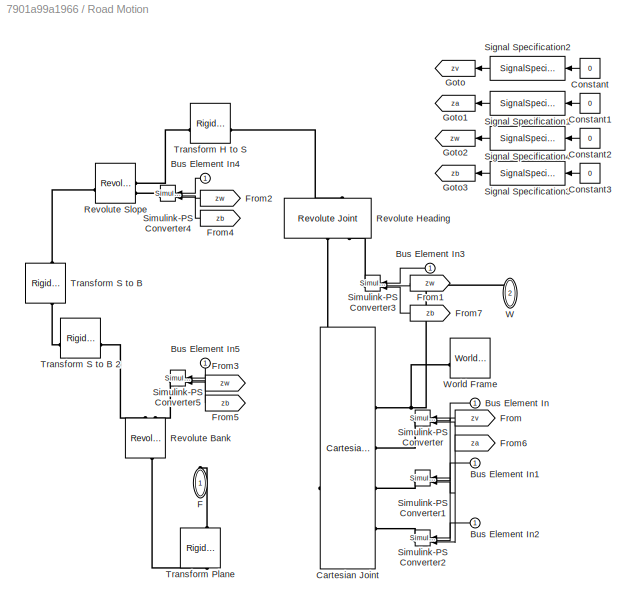
BLOCK [SubSystem] Road Motion
BLOCK [Inport] Road Motion/Bus Element In
BLOCK [Inport] Road Motion/Bus Element In1
BLOCK [Inport] Road Motion/Bus Element In2
BLOCK [Inport] Road Motion/Bus Element In3
BLOCK [Inport] Road Motion/Bus Element In4
BLOCK [Inport] Road Motion/Bus Element In5
BLOCK [Reference] Road Motion/Cartesian Joint  REF=sm_lib/Joints/Cartesian
Joint
  SourceBlock = sm_lib/Joints/Cartesian\nJoint
  SourceType = Cartesian\nJoint
BLOCK [Constant] Road Motion/Constant
  Value = 0
BLOCK [Constant] Road Motion/Constant1
  Value = 0
BLOCK [Constant] Road Motion/Constant2
  Value = 0
BLOCK [Constant] Road Motion/Constant3
  Value = 0
BLOCK [PMIOPort] Road Motion/F
  NameLocation = right
  Side = Right
BLOCK [From] Road Motion/From
  GotoTag = zv
BLOCK [From] Road Motion/From1
  GotoTag = zw
BLOCK [From] Road Motion/From2
  GotoTag = zw
BLOCK [From] Road Motion/From3
  GotoTag = zw
BLOCK [From] Road Motion/From4
  GotoTag = zb
BLOCK [From] Road Motion/From5
  GotoTag = zb
BLOCK [From] Road Motion/From6
  GotoTag = za
BLOCK [From] Road Motion/From7
  GotoTag = zb
BLOCK [Goto] Road Motion/Goto
  GotoTag = zv
  NameLocation = top
BLOCK [Goto] Road Motion/Goto1
  GotoTag = za
  NameLocation = top
BLOCK [Goto] Road Motion/Goto2
  GotoTag = zw
  NameLocation = top
BLOCK [Goto] Road Motion/Goto3
  GotoTag = zb
  NameLocation = top
BLOCK [Reference] Road Motion/Revolute Bank  REF=sm_lib/Joints/Revolute Joint
  NameLocation = left
  SourceBlock = sm_lib/Joints/Revolute Joint
  SourceType = Revolute Joint
BLOCK [Reference] Road Motion/Revolute Heading  REF=sm_lib/Joints/Revolute Joint
  NameLocation = right
  SourceBlock = sm_lib/Joints/Revolute Joint
  SourceType = Revolute Joint
BLOCK [Reference] Road Motion/Revolute Slope  REF=sm_lib/Joints/Revolute Joint
  SourceBlock = sm_lib/Joints/Revolute Joint
  SourceType = Revolute Joint
BLOCK [SignalSpecification] Road Motion/Signal Specification1
  Unit = m/s^2
BLOCK [SignalSpecification] Road Motion/Signal Specification2
  Unit = m/s
BLOCK [SignalSpecification] Road Motion/Signal Specification3
  Unit = rad/s^2
BLOCK [SignalSpecification] Road Motion/Signal Specification4
  Unit = rad/s
BLOCK [Reference] Road Motion/Simulink-PS Converter  REF=nesl_utility/Simulink-PS
Converter
  SourceBlock = nesl_utility/Simulink-PS\nConverter
  SourceType = Simulink-PS\nConverter
BLOCK [Reference] Road Motion/Simulink-PS Converter1  REF=nesl_utility/Simulink-PS
Converter
  SourceBlock = nesl_utility/Simulink-PS\nConverter
  SourceType = Simulink-PS\nConverter
BLOCK [Reference] Road Motion/Simulink-PS Converter2  REF=nesl_utility/Simulink-PS
Converter
  SourceBlock = nesl_utility/Simulink-PS\nConverter
  SourceType = Simulink-PS\nConverter
BLOCK [Reference] Road Motion/Simulink-PS Converter3  REF=nesl_utility/Simulink-PS
Converter
  NameLocation = top
  SourceBlock = nesl_utility/Simulink-PS\nConverter
  SourceType = Simulink-PS\nConverter
BLOCK [Reference] Road Motion/Simulink-PS Converter4  REF=nesl_utility/Simulink-PS
Converter
  SourceBlock = nesl_utility/Simulink-PS\nConverter
  SourceType = Simulink-PS\nConverter
BLOCK [Reference] Road Motion/Simulink-PS Converter5  REF=nesl_utility/Simulink-PS
Converter
  SourceBlock = nesl_utility/Simulink-PS\nConverter
  SourceType = Simulink-PS\nConverter
BLOCK [Reference] Road Motion/Transform H to S  REF=sm_lib/Frames and
Transforms/Rigid
Transform
  NameLocation = top
  SourceBlock = sm_lib/Frames and\nTransforms/Rigid\nTransform
  SourceType = Rigid\nTransform
BLOCK [Reference] Road Motion/Transform Plane  REF=sm_lib/Frames and
Transforms/Rigid
Transform
  NameLocation = right
  SourceBlock = sm_lib/Frames and\nTransforms/Rigid\nTransform
  SourceType = Rigid\nTransform
BLOCK [Reference] Road Motion/Transform S to B  REF=sm_lib/Frames and
Transforms/Rigid
Transform
  NameLocation = right
  SourceBlock = sm_lib/Frames and\nTransforms/Rigid\nTransform
  SourceType = Rigid\nTransform
BLOCK [Reference] Road Motion/Transform S to B 2  REF=sm_lib/Frames and
Transforms/Rigid
Transform
  SourceBlock = sm_lib/Frames and\nTransforms/Rigid\nTransform
  SourceType = Rigid\nTransform
BLOCK [PMIOPort] Road Motion/W
  NameLocation = right
  Port = 2
  Side = Right
BLOCK [Reference] Road Motion/World Frame  REF=sm_lib/Frames and
Transforms/World Frame
  NameLocation = top
  SourceBlock = sm_lib/Frames and\nTransforms/World Frame
  SourceType = World Frame
BLOCK [SubSystem] Road Surface
  AttributesFormatString = %<LabelModeActiveChoice>
  LabelModeActiveChoice = Flat
  NameLocation = top
  Variant = on
  VariantControl = Choice
  VariantControlMode = label
BLOCK [PMIOPort] Road Surface/C
  Side = Right
BLOCK [Reference] Road Surface/Flat  REF=$bdroot/Flat
  SourceBlock = $bdroot/Flat
  SourceType = SubSystem
BLOCK [Reference] Road Surface/Plateau  REF=$bdroot/Plateau
  SourceBlock = $bdroot/Plateau
BLOCK [Reference] Road Surface/Rough Road  REF=$bdroot/Rough Road
  SourceBlock = $bdroot/Rough Road
BLOCK [Outport] Road Surface/rd
BLOCK [SubSystem] Rough Road
BLOCK [PMIOPort] Rough Road/C
  Side = Right
BLOCK [Reference] Rough Road/PS-Simulink Converter2  REF=nesl_utility/PS-Simulink
Converter
  SourceBlock = nesl_utility/PS-Simulink\nConverter
  SourceType = PS-Simulink\nConverter
BLOCK [Reference] Rough Road/PS-Simulink Converter3  REF=nesl_utility/PS-Simulink
Converter
  SourceBlock = nesl_utility/PS-Simulink\nConverter
  SourceType = PS-Simulink\nConverter
BLOCK [SubSystem] Rough Road/Road
BLOCK [Lookup_n-D] Rough Road/Road/1-D Lookup Table pitch
  BreakpointsForDimension1 = SceneData.Rough_Road.Road.qyLUT.px
  InputPortMap = u0
  InternalRulePriority = Speed
  InterpMethod = Akima spline
  NumberOfTableDimensions = 1
  RndMeth = Simplest
  Table = SceneData.Rough_Road.Road.qyLUT.qy(:,LRind)
BLOCK [Lookup_n-D] Rough Road/Road/1-D Lookup Table pz
  BreakpointsForDimension1 = SceneData.Rough_Road.Road.pzLUT.px
  InputPortMap = u0
  InternalRulePriority = Speed
  InterpMethod = Akima spline
  NumberOfTableDimensions = 1
  RndMeth = Simplest
  Table = SceneData.Rough_Road.Road.pzLUT.pz(:,LRind)
BLOCK [BusCreator] Rough Road/Road/Bus Creator1
  DisplayOption = bar
  InheritFromInputs = on
  Inputs = 6
BLOCK [Constant] Rough Road/Road/Constant
  Value = 0
BLOCK [Constant] Rough Road/Road/Constant2
  Value = 0
BLOCK [Outport] Rough Road/Road/R
BLOCK [Inport] Rough Road/Road/x
BLOCK [Inport] Rough Road/Road/y
  Port = 2
BLOCK [TransferFcn] Rough Road/Transfer Fcn
  Denominator = [0.01 1]
BLOCK [TransferFcn] Rough Road/Transfer Fcn1
  Denominator = [0.01 1]
BLOCK [Reference] Rough Road/Transform Sensor  REF=sm_lib/Frames and
Transforms/Transform
Sensor
  SourceBlock = sm_lib/Frames and\nTransforms/Transform\nSensor
  SourceType = Transform\nSensor
BLOCK [Reference] Rough Road/World Frame  REF=sm_lib/Frames and
Transforms/World Frame
  NameLocation = left
  SourceBlock = sm_lib/Frames and\nTransforms/World Frame
  SourceType = World Frame
BLOCK [Outport] Rough Road/rd
BLOCK [SubSystem] Scene Plateau
BLOCK [SubSystem] Scene Plateau/RDF Polyline
BLOCK [Reference] Scene Plateau/RDF Polyline/Profile Left  REF=sm_lib/Body Elements/Extruded Solid
  SourceBlock = sm_lib/Body Elements/Extruded Solid
  SourceType = Extruded Solid
BLOCK [Reference] Scene Plateau/RDF Polyline/Profile Right  REF=sm_lib/Body Elements/Extruded Solid
  SourceBlock = sm_lib/Body Elements/Extruded Solid
  SourceType = Extruded Solid
BLOCK [Reference] Scene Plateau/RDF Polyline/Transform Left Profile  REF=sm_lib/Frames and
Transforms/Rigid
Transform
  NameLocation = right
  SourceBlock = sm_lib/Frames and\nTransforms/Rigid\nTransform
  SourceType = Rigid\nTransform
BLOCK [Reference] Scene Plateau/RDF Polyline/Transform Right Profile  REF=sm_lib/Frames and
Transforms/Rigid
Transform
  NameLocation = left
  SourceBlock = sm_lib/Frames and\nTransforms/Rigid\nTransform
  SourceType = Rigid\nTransform
BLOCK [Reference] Scene Plateau/RDF Polyline/Transform Road  REF=sm_lib/Frames and
Transforms/Rigid
Transform
  SourceBlock = sm_lib/Frames and\nTransforms/Rigid\nTransform
  SourceType = Rigid\nTransform
BLOCK [Reference] Scene Plateau/RDF Polyline/Transform Z to Y Left  REF=sm_lib/Frames and
Transforms/Rigid
Transform
  SourceBlock = sm_lib/Frames and\nTransforms/Rigid\nTransform
  SourceType = Rigid\nTransform
BLOCK [Reference] Scene Plateau/RDF Polyline/Transform Z to Y Right  REF=sm_lib/Frames and
Transforms/Rigid
Transform
  SourceBlock = sm_lib/Frames and\nTransforms/Rigid\nTransform
  SourceType = Rigid\nTransform
BLOCK [PMIOPort] Scene Plateau/RDF Polyline/W
  Side = Right
BLOCK [PMIOPort] Scene Plateau/W
  NameLocation = top
  Side = Left
BLOCK [SubSystem] Seat
  NameLocation = left
  PortSchema = {"entries":[{"content":{"sides":[{"content":{"connectorIds":["LConn1"]},"type":"ConnectorPlacement.EquallySpacedRectSide","uuid":"38d32dcf-1dff-49a9-9bf3-1223c0f422f2"},{"content":{"side":"RIGHT"},"type":"ConnectorPlacement.EquallySpacedRectSide","uuid":"36192739-f84e-41f7-af2d-aa015f4abc58"},{"content":{"side":"TOP"},"type":"ConnectorPlacement.EquallySpacedRectSide","uuid":"c24e34ec-b7c1-48cd-9db...<+353ch>
BLOCK [PMIOPort] Seat/B
  NameLocation = right
  Side = Left
BLOCK [PMIOPort] Seat/F
  NameLocation = left
  Port = 2
  Side = Right
BLOCK [Reference] Seat/Seat  REF=sm_lib/Body Elements/File Solid
  SourceBlock = sm_lib/Body Elements/File Solid
  SourceType = File Solid
BLOCK [Reference] Seat/Transform Ref to GeoRef  REF=sm_lib/Frames and
Transforms/Rigid
Transform
  SourceBlock = sm_lib/Frames and\nTransforms/Rigid\nTransform
  SourceType = Rigid\nTransform
BLOCK [SubSystem] Steering Wheel
BLOCK [Gain] Steering Wheel/Gain
  Gain = 0.25
BLOCK [PMIOPort] Steering Wheel/LH
  Port = 3
  Side = Right
BLOCK [PMIOPort] Steering Wheel/RH
  Port = 2
  Side = Right
BLOCK [PMIOPort] Steering Wheel/Ref
  Side = Left
BLOCK [Reference] Steering Wheel/Revolute Steer  REF=sm_lib/Joints/Revolute Joint
  NameLocation = right
  SourceBlock = sm_lib/Joints/Revolute Joint
  SourceType = Revolute Joint
BLOCK [Reference] Steering Wheel/Simulink-PS Converter  REF=nesl_utility/Simulink-PS
Converter
  SourceBlock = nesl_utility/Simulink-PS\nConverter
  SourceType = Simulink-PS\nConverter
BLOCK [SubSystem] Steering Wheel/Steering
  NameLocation = right
BLOCK [PMIOPort] Steering Wheel/Steering/R
  Side = Left
BLOCK [Reference] Steering Wheel/Steering/Rigid Transform  REF=sm_lib/Frames and
Transforms/Rigid
Transform
  SourceBlock = sm_lib/Frames and\nTransforms/Rigid\nTransform
  SourceType = Rigid\nTransform
BLOCK [Reference] Steering Wheel/Steering/Steer Wheel  REF=sm_lib/Body Elements/File Solid
  SourceBlock = sm_lib/Body Elements/File Solid
  SourceType = File Solid
BLOCK [Reference] Steering Wheel/Steering/Steer Wheel Cap  REF=sm_lib/Body Elements/File Solid
  SourceBlock = sm_lib/Body Elements/File Solid
  SourceType = File Solid
BLOCK [Reference] Steering Wheel/Steering/Steer Wheel Center  REF=sm_lib/Body Elements/File Solid
  SourceBlock = sm_lib/Body Elements/File Solid
  SourceType = File Solid
BLOCK [Reference] Steering Wheel/Steering/Steer Wheel Column  REF=sm_lib/Body Elements/File Solid
  SourceBlock = sm_lib/Body Elements/File Solid
  SourceType = File Solid
BLOCK [Reference] Steering Wheel/Steering/Steer Wheel Column1  REF=sm_lib/Body Elements/File Solid
  SourceBlock = sm_lib/Body Elements/File Solid
  SourceType = File Solid
BLOCK [Reference] Steering Wheel/Steering/Steer Wheel Spoke 1  REF=sm_lib/Body Elements/File Solid
  SourceBlock = sm_lib/Body Elements/File Solid
  SourceType = File Solid
BLOCK [Reference] Steering Wheel/Steering/Steer Wheel Spoke 2  REF=sm_lib/Body Elements/File Solid
  SourceBlock = sm_lib/Body Elements/File Solid
  SourceType = File Solid
BLOCK [Reference] Steering Wheel/Steering/Steer Wheel Spoke 3  REF=sm_lib/Body Elements/File Solid
  SourceBlock = sm_lib/Body Elements/File Solid
  SourceType = File Solid
BLOCK [Reference] Steering Wheel/Transform Column Extension  REF=sm_lib/Frames and
Transforms/Rigid
Transform
  SourceBlock = sm_lib/Frames and\nTransforms/Rigid\nTransform
  SourceType = Rigid\nTransform
BLOCK [Reference] Steering Wheel/Transform HandL  REF=sm_lib/Frames and
Transforms/Rigid
Transform
  SourceBlock = sm_lib/Frames and\nTransforms/Rigid\nTransform
  SourceType = Rigid\nTransform
BLOCK [Reference] Steering Wheel/Transform HandR  REF=sm_lib/Frames and
Transforms/Rigid
Transform
  SourceBlock = sm_lib/Frames and\nTransforms/Rigid\nTransform
  SourceType = Rigid\nTransform
BLOCK [Reference] Steering Wheel/Transform Steer AxisB  REF=sm_lib/Frames and
Transforms/Rigid
Transform
  NameLocation = right
  SourceBlock = sm_lib/Frames and\nTransforms/Rigid\nTransform
  SourceType = Rigid\nTransform
BLOCK [Reference] Steering Wheel/Transform Steer AxisF  REF=sm_lib/Frames and
Transforms/Rigid
Transform
  NameLocation = right
  SourceBlock = sm_lib/Frames and\nTransforms/Rigid\nTransform
  SourceType = Rigid\nTransform
BLOCK [Inport] Steering Wheel/qStr
BLOCK [SubSystem] Suspension
  AttributesFormatString = %<popup_suspension>
  LabelModeActiveChoice = Heave Linear
  NameLocation = right
  Variant = on
  VariantControl = Suspension
  VariantControlMode = label
BLOCK [PMIOPort] Suspension/B
  NameLocation = right
  Port = 2
  Side = Left
BLOCK [PMIOPort] Suspension/F
  NameLocation = right
  Side = Right
BLOCK [SubSystem] Suspension/Heave Linear
  NameLocation = left
  VariantControl = Heave Linear
BLOCK [PMIOPort] Suspension/Heave Linear/B
  NameLocation = right
  Port = 2
  Side = Left
BLOCK [PMIOPort] Suspension/Heave Linear/F
  NameLocation = left
  Side = Right
BLOCK [Reference] Suspension/Heave Linear/Prismatic Suspension  REF=sm_lib/Joints/Prismatic
Joint
  NameLocation = right
  SourceBlock = sm_lib/Joints/Prismatic\nJoint
  SourceType = Prismatic\nJoint
BLOCK [Reference] Suspension/Heave Linear/Transform Suspension Location B  REF=sm_lib/Frames and
Transforms/Rigid
Transform
  NameLocation = right
  SourceBlock = sm_lib/Frames and\nTransforms/Rigid\nTransform
  SourceType = Rigid\nTransform
BLOCK [Reference] Suspension/Heave Linear/Transform Suspension Location F  REF=sm_lib/Frames and
Transforms/Rigid
Transform
  NameLocation = right
  SourceBlock = sm_lib/Frames and\nTransforms/Rigid\nTransform
  SourceType = Rigid\nTransform
BLOCK [SubSystem] Suspension/None
  NameLocation = left
  VariantControl = None
BLOCK [PMIOPort] Suspension/None/B
  NameLocation = right
  Port = 2
  Side = Left
BLOCK [PMIOPort] Suspension/None/F
  NameLocation = left
  Side = Right
BLOCK [SubSystem] Tire G F
  NameLocation = top
BLOCK [BusCreator] Tire G F/Bus Creator
  DisplayOption = bar
  InheritFromInputs = on
  Inputs = 7
BLOCK [Demux] Tire G F/Demux
  Outputs = 3
BLOCK [Demux] Tire G F/Demux1
  Outputs = 3
BLOCK [PMIOPort] Tire G F/G
  Port = 2
  Side = Right
BLOCK [Reference] Tire G F/Geometry  REF=Tractor_Geometry/Wheel FL
Geometry
  SourceBlock = Tractor_Geometry/Wheel FL\nGeometry
  SourceType = SubSystem
BLOCK [Reference] Tire G F/Inertia  REF=sm_lib/Body Elements/Inertia
  NameLocation = top
  SourceBlock = sm_lib/Body Elements/Inertia
  SourceType = Inertia
BLOCK [Reference] Tire G F/Magic Formula Tire Force and Torque  REF=sm_lib/Forces and
Torques/Magic Formula Tire
Force and Torque
  SourceBlock = sm_lib/Forces and\nTorques/Magic Formula Tire\nForce and Torque
  SourceType = Magic Formula Tire\nForce and Torque
BLOCK [Reference] Tire G F/PS-Simulink Converter  REF=nesl_utility/PS-Simulink
Converter
  SourceBlock = nesl_utility/PS-Simulink\nConverter
  SourceType = PS-Simulink\nConverter
BLOCK [Reference] Tire G F/PS-Simulink Converter1  REF=nesl_utility/PS-Simulink
Converter
  SourceBlock = nesl_utility/PS-Simulink\nConverter
  SourceType = PS-Simulink\nConverter
BLOCK [Reference] Tire G F/PS-Simulink Converter2  REF=nesl_utility/PS-Simulink
Converter
  SourceBlock = nesl_utility/PS-Simulink\nConverter
  SourceType = PS-Simulink\nConverter
BLOCK [Reference] Tire G F/PS-Simulink Converter3  REF=nesl_utility/PS-Simulink
Converter
  SourceBlock = nesl_utility/PS-Simulink\nConverter
  SourceType = PS-Simulink\nConverter
BLOCK [PMIOPort] Tire G F/R
  Side = Left
BLOCK [Math] Tire G F/Square
  Operator = square
BLOCK [Sqrt] Tire G F/Square Root
BLOCK [Math] Tire G F/Square1
  Operator = square
BLOCK [Sum] Tire G F/Sum
  Inputs = |++
  NameLocation = left
BLOCK [Reference] Tire G F/Transform Rotation Axis  REF=sm_lib/Frames and
Transforms/Rigid
Transform
  SourceBlock = sm_lib/Frames and\nTransforms/Rigid\nTransform
  SourceType = Rigid\nTransform
BLOCK [Outport] Tire G F/m
BLOCK [SubSystem] Tire G R
  NameLocation = top
BLOCK [BusCreator] Tire G R/Bus Creator
  DisplayOption = bar
  InheritFromInputs = on
  Inputs = 7
BLOCK [Demux] Tire G R/Demux
  Outputs = 3
BLOCK [Demux] Tire G R/Demux1
  Outputs = 3
BLOCK [PMIOPort] Tire G R/G
  Port = 2
  Side = Right
BLOCK [Reference] Tire G R/Geometry  REF=Tractor_Geometry/Wheel RL
Geometry
  SourceBlock = Tractor_Geometry/Wheel RL\nGeometry
  SourceType = SubSystem
BLOCK [Reference] Tire G R/Inertia  REF=sm_lib/Body Elements/Inertia
  NameLocation = left
  SourceBlock = sm_lib/Body Elements/Inertia
  SourceType = Inertia
BLOCK [Reference] Tire G R/Magic Formula Tire Force and Torque  REF=sm_lib/Forces and
Torques/Magic Formula Tire
Force and Torque
  SourceBlock = sm_lib/Forces and\nTorques/Magic Formula Tire\nForce and Torque
  SourceType = Magic Formula Tire\nForce and Torque
BLOCK [Reference] Tire G R/PS-Simulink Converter  REF=nesl_utility/PS-Simulink
Converter
  SourceBlock = nesl_utility/PS-Simulink\nConverter
  SourceType = PS-Simulink\nConverter
BLOCK [Reference] Tire G R/PS-Simulink Converter1  REF=nesl_utility/PS-Simulink
Converter
  SourceBlock = nesl_utility/PS-Simulink\nConverter
  SourceType = PS-Simulink\nConverter
BLOCK [Reference] Tire G R/PS-Simulink Converter2  REF=nesl_utility/PS-Simulink
Converter
  SourceBlock = nesl_utility/PS-Simulink\nConverter
  SourceType = PS-Simulink\nConverter
BLOCK [Reference] Tire G R/PS-Simulink Converter3  REF=nesl_utility/PS-Simulink
Converter
  SourceBlock = nesl_utility/PS-Simulink\nConverter
  SourceType = PS-Simulink\nConverter
BLOCK [PMIOPort] Tire G R/R
  Side = Left
BLOCK [Math] Tire G R/Square
  Operator = square
BLOCK [Sqrt] Tire G R/Square Root
BLOCK [Math] Tire G R/Square1
  Operator = square
BLOCK [Sum] Tire G R/Sum
  Inputs = |++
  NameLocation = left
BLOCK [Reference] Tire G R/Transform Rotation Axis  REF=sm_lib/Frames and
Transforms/Rigid
Transform
  SourceBlock = sm_lib/Frames and\nTransforms/Rigid\nTransform
  SourceType = Rigid\nTransform
BLOCK [Outport] Tire G R/m
BLOCK [Reference] Wheel FL Geometry  REF=Tractor_Geometry/Wheel FL
Geometry
  SourceBlock = Tractor_Geometry/Wheel FL\nGeometry
  SourceType = SubSystem
BLOCK [Reference] Wheel RL Geometry  REF=Tractor_Geometry/Wheel RL
Geometry
  SourceBlock = Tractor_Geometry/Wheel RL\nGeometry
  SourceType = SubSystem
BLOCK [SubSystem] World Sensor
BLOCK [PMIOPort] World Sensor/B
  NameLocation = top
  Side = Left
BLOCK [Outport] World Sensor/Bus Element Out
  VectorParamsAs1DForOutWhenUnconnected = off
BLOCK [Outport] World Sensor/Bus Element Out1
  VectorParamsAs1DForOutWhenUnconnected = off
BLOCK [Outport] World Sensor/Bus Element Out10
  VectorParamsAs1DForOutWhenUnconnected = off
BLOCK [Outport] World Sensor/Bus Element Out12
  VectorParamsAs1DForOutWhenUnconnected = off
BLOCK [Outport] World Sensor/Bus Element Out13
  VectorParamsAs1DForOutWhenUnconnected = off
BLOCK [Outport] World Sensor/Bus Element Out2
  VectorParamsAs1DForOutWhenUnconnected = off
BLOCK [Outport] World Sensor/Bus Element Out3
  VectorParamsAs1DForOutWhenUnconnected = off
BLOCK [Outport] World Sensor/Bus Element Out4
  VectorParamsAs1DForOutWhenUnconnected = off
BLOCK [Outport] World Sensor/Bus Element Out5
  VectorParamsAs1DForOutWhenUnconnected = off
BLOCK [Outport] World Sensor/Bus Element Out6
  VectorParamsAs1DForOutWhenUnconnected = off
BLOCK [Outport] World Sensor/Bus Element Out7
  VectorParamsAs1DForOutWhenUnconnected = off
BLOCK [Outport] World Sensor/Bus Element Out8
  VectorParamsAs1DForOutWhenUnconnected = off
BLOCK [Outport] World Sensor/Bus Element Out9
  VectorParamsAs1DForOutWhenUnconnected = off
BLOCK [Reference] World Sensor/PS-Simulink Converter1  REF=nesl_utility/PS-Simulink
Converter
  SourceBlock = nesl_utility/PS-Simulink\nConverter
  SourceType = PS-Simulink\nConverter
BLOCK [Reference] World Sensor/PS-Simulink Converter11  REF=nesl_utility/PS-Simulink
Converter
  SourceBlock = nesl_utility/PS-Simulink\nConverter
  SourceType = PS-Simulink\nConverter
BLOCK [Reference] World Sensor/PS-Simulink Converter2  REF=nesl_utility/PS-Simulink
Converter
  SourceBlock = nesl_utility/PS-Simulink\nConverter
  SourceType = PS-Simulink\nConverter
BLOCK [Reference] World Sensor/PS-Simulink Converter3  REF=nesl_utility/PS-Simulink
Converter
  SourceBlock = nesl_utility/PS-Simulink\nConverter
  SourceType = PS-Simulink\nConverter
BLOCK [Reference] World Sensor/PS-Simulink Converter4  REF=nesl_utility/PS-Simulink
Converter
  SourceBlock = nesl_utility/PS-Simulink\nConverter
  SourceType = PS-Simulink\nConverter
BLOCK [Reference] World Sensor/PS-Simulink Converter5  REF=nesl_utility/PS-Simulink
Converter
  SourceBlock = nesl_utility/PS-Simulink\nConverter
  SourceType = PS-Simulink\nConverter
BLOCK [Reference] World Sensor/PS-Simulink Converter6  REF=nesl_utility/PS-Simulink
Converter
  SourceBlock = nesl_utility/PS-Simulink\nConverter
  SourceType = PS-Simulink\nConverter
BLOCK [Reference] World Sensor/PS-Simulink Converter7  REF=nesl_utility/PS-Simulink
Converter
  SourceBlock = nesl_utility/PS-Simulink\nConverter
  SourceType = PS-Simulink\nConverter
BLOCK [Reference] World Sensor/PS-Simulink Converter8  REF=nesl_utility/PS-Simulink
Converter
  SourceBlock = nesl_utility/PS-Simulink\nConverter
  SourceType = PS-Simulink\nConverter
BLOCK [Reference] World Sensor/PS-Simulink Converter9  REF=nesl_utility/PS-Simulink
Converter
  SourceBlock = nesl_utility/PS-Simulink\nConverter
  SourceType = PS-Simulink\nConverter
BLOCK [SubSystem] World Sensor/Roll Pitch
BLOCK [SubSystem] World Sensor/Roll Pitch/Calculate aPitch
BLOCK [Outport] World Sensor/Roll Pitch/Calculate aPitch/Angle
  VectorParamsAs1DForOutWhenUnconnected = off
BLOCK [Trigonometry] World Sensor/Roll Pitch/Calculate aPitch/Asin
  Operator = asin
BLOCK [Trigonometry] World Sensor/Roll Pitch/Calculate aPitch/Cos
  Operator = cos
BLOCK [Product] World Sensor/Roll Pitch/Calculate aPitch/Divide
  Inputs = */
BLOCK [Product] World Sensor/Roll Pitch/Calculate aPitch/Divide1
  Inputs = */
BLOCK [Inport] World Sensor/Roll Pitch/Calculate aPitch/Roll Angle
BLOCK [Selector] World Sensor/Roll Pitch/Calculate aPitch/Selector
  IndexOptions = Index vector (dialog)
  Indices = [3]
  InputPortWidth = 3
  NameLocation = top
  OutputSizes = 1
BLOCK [Fcn] World Sensor/Roll Pitch/Calculate aPitch/magnitude
  Expr = sqrt(u(1)*u(1)+u(2)*u(2)+u(3)*u(3))
BLOCK [Inport] World Sensor/Roll Pitch/Calculate aPitch/uvec
  Port = 2
BLOCK [SubSystem] World Sensor/Roll Pitch/Calculate aRoll
BLOCK [Outport] World Sensor/Roll Pitch/Calculate aRoll/Angle
  VectorParamsAs1DForOutWhenUnconnected = off
BLOCK [Demux] World Sensor/Roll Pitch/Calculate aRoll/Demux
  Outputs = 3
BLOCK [Mux] World Sensor/Roll Pitch/Calculate aRoll/Mux
  DisplayOption = bar
  Inputs = 2
BLOCK [Trigonometry] World Sensor/Roll Pitch/Calculate aRoll/Trigonometric Function1
  Operator = atan2
BLOCK [Fcn] World Sensor/Roll Pitch/Calculate aRoll/magnitude
  Expr = sqrt(u(1)*u(1)+u(2)*u(2))
BLOCK [Inport] World Sensor/Roll Pitch/Calculate aRoll/uvec
BLOCK [Gain] World Sensor/Roll Pitch/Flip sign for -x axis 
  Gain = -1
BLOCK [Inport] World Sensor/Roll Pitch/R
BLOCK [Selector] World Sensor/Roll Pitch/Select x axis
  IndexOptions = Index vector (dialog),Index vector (dialog)
  Indices = [1 2 3],1
  InputPortWidth = 2
  NumberOfDimensions = 2
  OutputSizes = 1,1
BLOCK [Selector] World Sensor/Roll Pitch/Select y axis
  IndexOptions = Index vector (dialog),Index vector (dialog)
  Indices = [1 2 3],2
  InputPortWidth = 2
  NumberOfDimensions = 2
  OutputSizes = 1,1
BLOCK [TransferFcn] World Sensor/Roll Pitch/Transfer Fcn
  Denominator = [0.01 1]
  NameLocation = top
  Numerator = [1 0]
BLOCK [TransferFcn] World Sensor/Roll Pitch/Transfer Fcn1
  Denominator = [0.01 1]
  NameLocation = top
  Numerator = [1 0]
BLOCK [Outport] World Sensor/Roll Pitch/aPitch
  Port = 2
  VectorParamsAs1DForOutWhenUnconnected = off
BLOCK [Outport] World Sensor/Roll Pitch/aRoll
  VectorParamsAs1DForOutWhenUnconnected = off
BLOCK [Outport] World Sensor/Roll Pitch/nPitch
  Port = 4
  VectorParamsAs1DForOutWhenUnconnected = off
BLOCK [Outport] World Sensor/Roll Pitch/nRoll
  Port = 3
  VectorParamsAs1DForOutWhenUnconnected = off
BLOCK [SignalSpecification] World Sensor/Signal Specification
  Unit = rad
BLOCK [SignalSpecification] World Sensor/Signal Specification1
  Unit = rad
BLOCK [SignalSpecification] World Sensor/Signal Specification3
  Unit = rad/s
BLOCK [SignalSpecification] World Sensor/Signal Specification4
  Unit = rad/s
BLOCK [Reference] World Sensor/Transform Sensor Body  REF=sm_lib/Frames and
Transforms/Transform
Sensor
  AttributesFormatString = %<MeasurementFrame>
  SourceBlock = sm_lib/Frames and\nTransforms/Transform\nSensor
  SourceType = Transform\nSensor
BLOCK [Reference] World Sensor/Transform Sensor Offset  REF=sm_lib/Frames and
Transforms/Rigid
Transform
  NameLocation = top
  SourceBlock = sm_lib/Frames and\nTransforms/Rigid\nTransform
  SourceType = Rigid\nTransform
BLOCK [Reference] World Sensor/World Frame  REF=sm_lib/Frames and
Transforms/World Frame
  SourceBlock = sm_lib/Frames and\nTransforms/World Frame
  SourceType = World Frame
ANNOTATION (root): <copyright redacted>
ANNOTATION Camera Frames: Orientation Fixed to Vehicle Body
ANNOTATION Camera Frames: Orientation Fixed to World
ANNOTATION Flat/Road: This implementation is for a flat road
ANNOTATION Plateau/Road: This implementation only varies road height and pitch along World x-axis.
ANNOTATION Point Cloud F: Sensing not equivalent to Magic Formula Tire
ANNOTATION Point Cloud R: Sensing not equivalent to Magic Formula Tire
ANNOTATION Rough Road/Road: This implementation only varies road height and pitch along World x-axis.
LINE Body Sensor Empty/Constant10:1 -> Body Sensor Empty/Bus Element Out4:1
LINE Body Sensor Empty/Constant11:1 -> Body Sensor Empty/Bus Element Out5:1
LINE Body Sensor Empty/Constant12:1 -> Body Sensor Empty/Bus Element Out6:1
LINE Body Sensor Empty/Constant13:1 -> Body Sensor Empty/Bus Element Out7:1
LINE Body Sensor Empty/Constant14:1 -> Body Sensor Empty/Bus Element Out8:1
LINE Body Sensor Empty/Constant1:1 -> Body Sensor Empty/Signal Specification5:1
LINE Body Sensor Empty/Constant2:1 -> Body Sensor Empty/Signal Specification:1
LINE Body Sensor Empty/Constant3:1 -> Body Sensor Empty/Signal Specification1:1
LINE Body Sensor Empty/Constant4:1 -> Body Sensor Empty/Signal Specification3:1
LINE Body Sensor Empty/Constant5:1 -> Body Sensor Empty/Signal Specification4:1
LINE Body Sensor Empty/Constant6:1 -> Body Sensor Empty/Bus Element Out:1
LINE Body Sensor Empty/Constant7:1 -> Body Sensor Empty/Bus Element Out1:1
LINE Body Sensor Empty/Constant8:1 -> Body Sensor Empty/Bus Element Out2:1
LINE Body Sensor Empty/Constant9:1 -> Body Sensor Empty/Bus Element Out3:1
LINE Body Sensor Empty/Constant:1 -> Body Sensor Empty/Signal Specification2:1
LINE Body Sensor Empty/Signal Specification1:1 -> Body Sensor Empty/Bus Element Out13:1
LINE Body Sensor Empty/Signal Specification2:1 -> Body Sensor Empty/Bus Element Out14:1
LINE Body Sensor Empty/Signal Specification3:1 -> Body Sensor Empty/Bus Element Out9:1
LINE Body Sensor Empty/Signal Specification4:1 -> Body Sensor Empty/Bus Element Out10:1
LINE Body Sensor Empty/Signal Specification5:1 -> Body Sensor Empty/Bus Element Out11:1
LINE Body Sensor Empty/Signal Specification:1 -> Body Sensor Empty/Bus Element Out12:1
LINE Body Sensor/PS-Simulink Converter11:1 -> Body Sensor/Roll Pitch:1
LINE Body Sensor/PS-Simulink Converter1:1 -> Body Sensor/Bus Element Out:1
LINE Body Sensor/PS-Simulink Converter2:1 -> Body Sensor/Bus Element Out1:1
LINE Body Sensor/PS-Simulink Converter3:1 -> Body Sensor/Bus Element Out2:1
LINE Body Sensor/PS-Simulink Converter4:1 -> Body Sensor/Bus Element Out3:1
LINE Body Sensor/PS-Simulink Converter5:1 -> Body Sensor/Bus Element Out4:1
LINE Body Sensor/PS-Simulink Converter6:1 -> Body Sensor/Bus Element Out5:1
LINE Body Sensor/PS-Simulink Converter7:1 -> Body Sensor/Bus Element Out6:1
LINE Body Sensor/PS-Simulink Converter8:1 -> Body Sensor/Bus Element Out7:1
LINE Body Sensor/PS-Simulink Converter9:1 -> Body Sensor/Bus Element Out8:1
LINE Body Sensor/Roll Pitch/Calculate aPitch/Asin:1 -> Body Sensor/Roll Pitch/Calculate aPitch/Angle:1
LINE Body Sensor/Roll Pitch/Calculate aPitch/Cos:1 -> Body Sensor/Roll Pitch/Calculate aPitch/Divide:2
LINE Body Sensor/Roll Pitch/Calculate aPitch/Divide1:1 -> Body Sensor/Roll Pitch/Calculate aPitch/Asin:1
LINE Body Sensor/Roll Pitch/Calculate aPitch/Divide:1 -> Body Sensor/Roll Pitch/Calculate aPitch/Divide1:1
LINE Body Sensor/Roll Pitch/Calculate aPitch/Roll Angle:1 -> Body Sensor/Roll Pitch/Calculate aPitch/Cos:1
LINE Body Sensor/Roll Pitch/Calculate aPitch/Selector:1 -> Body Sensor/Roll Pitch/Calculate aPitch/Divide:1
LINE Body Sensor/Roll Pitch/Calculate aPitch/magnitude:1 -> Body Sensor/Roll Pitch/Calculate aPitch/Divide1:2
NET Body Sensor/Roll Pitch/Calculate aPitch/uvec:1 -> Body Sensor/Roll Pitch/Calculate aPitch/Selector:1, Body Sensor/Roll Pitch/Calculate aPitch/magnitude:1
LINE Body Sensor/Roll Pitch/Calculate aPitch:1 -> Body Sensor/Roll Pitch/Flip sign for -x axis :1
LINE Body Sensor/Roll Pitch/Calculate aRoll/Demux:1 -> Body Sensor/Roll Pitch/Calculate aRoll/Mux:1
LINE Body Sensor/Roll Pitch/Calculate aRoll/Demux:2 -> Body Sensor/Roll Pitch/Calculate aRoll/Mux:2
LINE Body Sensor/Roll Pitch/Calculate aRoll/Demux:3 -> Body Sensor/Roll Pitch/Calculate aRoll/Trigonometric Function1:1
LINE Body Sensor/Roll Pitch/Calculate aRoll/Mux:1 -> Body Sensor/Roll Pitch/Calculate aRoll/magnitude:1
LINE Body Sensor/Roll Pitch/Calculate aRoll/Trigonometric Function1:1 -> Body Sensor/Roll Pitch/Calculate aRoll/Angle:1
LINE Body Sensor/Roll Pitch/Calculate aRoll/magnitude:1 -> Body Sensor/Roll Pitch/Calculate aRoll/Trigonometric Function1:2
LINE Body Sensor/Roll Pitch/Calculate aRoll/uvec:1 -> Body Sensor/Roll Pitch/Calculate aRoll/Demux:1
NET Body Sensor/Roll Pitch/Calculate aRoll:1 -> Body Sensor/Roll Pitch/Calculate aPitch:1, Body Sensor/Roll Pitch/Transfer Fcn:1, Body Sensor/Roll Pitch/aRoll:1
NET Body Sensor/Roll Pitch/Flip sign for -x axis :1 -> Body Sensor/Roll Pitch/Transfer Fcn1:1, Body Sensor/Roll Pitch/aPitch:1
NET Body Sensor/Roll Pitch/R:1 -> Body Sensor/Roll Pitch/Select x axis:1, Body Sensor/Roll Pitch/Select y axis:1
LINE Body Sensor/Roll Pitch/Select x axis:1 -> Body Sensor/Roll Pitch/Calculate aPitch:2
LINE Body Sensor/Roll Pitch/Select y axis:1 -> Body Sensor/Roll Pitch/Calculate aRoll:1
LINE Body Sensor/Roll Pitch/Transfer Fcn1:1 -> Body Sensor/Roll Pitch/nPitch:1
LINE Body Sensor/Roll Pitch/Transfer Fcn:1 -> Body Sensor/Roll Pitch/nRoll:1
LINE Body Sensor/Roll Pitch:1 -> Body Sensor/Signal Specification:1
LINE Body Sensor/Roll Pitch:2 -> Body Sensor/Signal Specification1:1
LINE Body Sensor/Roll Pitch:3 -> Body Sensor/Signal Specification3:1
LINE Body Sensor/Roll Pitch:4 -> Body Sensor/Signal Specification4:1
LINE Body Sensor/Signal Specification1:1 -> Body Sensor/Bus Element Out13:1
LINE Body Sensor/Signal Specification3:1 -> Body Sensor/Bus Element Out9:1
LINE Body Sensor/Signal Specification4:1 -> Body Sensor/Bus Element Out10:1
LINE Body Sensor/Signal Specification:1 -> Body Sensor/Bus Element Out12:1
LINE Flat/Road/Bus Creator1:1 -> Flat/Road/R:1
LINE Flat/Road/Constant1:1 -> Flat/Road/Bus Creator1:1
LINE Flat/Road/Constant2:1 -> Flat/Road/Bus Creator1:6
LINE Flat/Road/Constant3:1 -> Flat/Road/Bus Creator1:3
LINE Flat/Road/Constant4:1 -> Flat/Road/Bus Creator1:5
LINE Flat/Road/Constant5:1 -> Flat/Road/Bus Creator1:2
LINE Flat/Road/Constant6:1 -> Flat/Road/Bus Creator1:8
LINE Flat/Road/Constant7:1 -> Flat/Road/Bus Creator1:7
LINE Flat/Road/Constant:1 -> Flat/Road/Bus Creator1:4
LINE Flat/Road:1 -> Flat/rd:1
LINE Global Sensor WGS ENU/MATLAB Function:1 -> Global Sensor WGS ENU/Bus Element Out9:1
LINE Global Sensor WGS ENU/MATLAB Function:2 -> Global Sensor WGS ENU/Bus Element Out10:1
LINE Global Sensor WGS ENU/MATLAB Function:3 -> Global Sensor WGS ENU/Bus Element Out11:1
LINE Global Sensor WGS ENU/Mux3:1 -> Global Sensor WGS ENU/MATLAB Function:2
LINE Global Sensor WGS ENU/Mux:1 -> Global Sensor WGS ENU/MATLAB Function:1
NET Global Sensor WGS ENU/PS-Simulink Converter1:1 -> Global Sensor WGS ENU/Bus Element Out:1, Global Sensor WGS ENU/Mux:1
NET Global Sensor WGS ENU/PS-Simulink Converter2:1 -> Global Sensor WGS ENU/Bus Element Out1:1, Global Sensor WGS ENU/Mux:2
NET Global Sensor WGS ENU/PS-Simulink Converter3:1 -> Global Sensor WGS ENU/Bus Element Out2:1, Global Sensor WGS ENU/Mux:3
LINE Global Sensor WGS ENU/PS-Simulink Converter4:1 -> Global Sensor WGS ENU/Bus Element Out3:1
LINE Global Sensor WGS ENU/PS-Simulink Converter5:1 -> Global Sensor WGS ENU/Bus Element Out4:1
LINE Global Sensor WGS ENU/PS-Simulink Converter6:1 -> Global Sensor WGS ENU/Bus Element Out5:1
LINE Global Sensor WGS ENU/PS-Simulink Converter7:1 -> Global Sensor WGS ENU/Bus Element Out6:1
LINE Global Sensor WGS ENU/PS-Simulink Converter8:1 -> Global Sensor WGS ENU/Bus Element Out7:1
LINE Global Sensor WGS ENU/PS-Simulink Converter9:1 -> Global Sensor WGS ENU/Bus Element Out8:1
LINE Global Sensor WGS ENU/Ref Lat:1 -> Global Sensor WGS ENU/Mux3:1
LINE Global Sensor WGS ENU/Ref Lon:1 -> Global Sensor WGS ENU/Mux3:2
LINE Global Sensor WGS ENU/Ref hEll:1 -> Global Sensor WGS ENU/Mux3:3
LINE Global Sensor WGS NED/Gain:1 -> Global Sensor WGS NED/Mux:3
LINE Global Sensor WGS NED/MATLAB Function:1 -> Global Sensor WGS NED/Bus Element Out9:1
LINE Global Sensor WGS NED/MATLAB Function:2 -> Global Sensor WGS NED/Bus Element Out10:1
LINE Global Sensor WGS NED/MATLAB Function:3 -> Global Sensor WGS NED/Bus Element Out11:1
LINE Global Sensor WGS NED/Mux3:1 -> Global Sensor WGS NED/MATLAB Function:2
LINE Global Sensor WGS NED/Mux:1 -> Global Sensor WGS NED/MATLAB Function:1
NET Global Sensor WGS NED/PS-Simulink Converter1:1 -> Global Sensor WGS NED/Bus Element Out:1, Global Sensor WGS NED/Mux:1
NET Global Sensor WGS NED/PS-Simulink Converter2:1 -> Global Sensor WGS NED/Bus Element Out1:1, Global Sensor WGS NED/Mux:2
NET Global Sensor WGS NED/PS-Simulink Converter3:1 -> Global Sensor WGS NED/Bus Element Out2:1, Global Sensor WGS NED/Gain:1
LINE Global Sensor WGS NED/PS-Simulink Converter4:1 -> Global Sensor WGS NED/Bus Element Out3:1
LINE Global Sensor WGS NED/PS-Simulink Converter5:1 -> Global Sensor WGS NED/Bus Element Out4:1
LINE Global Sensor WGS NED/PS-Simulink Converter6:1 -> Global Sensor WGS NED/Bus Element Out5:1
LINE Global Sensor WGS NED/PS-Simulink Converter7:1 -> Global Sensor WGS NED/Bus Element Out6:1
LINE Global Sensor WGS NED/PS-Simulink Converter8:1 -> Global Sensor WGS NED/Bus Element Out7:1
LINE Global Sensor WGS NED/PS-Simulink Converter9:1 -> Global Sensor WGS NED/Bus Element Out8:1
LINE Global Sensor WGS NED/Ref Lat:1 -> Global Sensor WGS NED/Mux3:1
LINE Global Sensor WGS NED/Ref Lon:1 -> Global Sensor WGS NED/Mux3:2
LINE Global Sensor WGS NED/Ref hEll:1 -> Global Sensor WGS NED/Mux3:3
LINE Mu Scaling by Position/Bus Creator:1 -> Mu Scaling by Position/rd:1
LINE Mu Scaling by Position/Compare To Constant1:1 -> Mu Scaling by Position/Gain:1
LINE Mu Scaling by Position/Compare To Constant:1 -> Mu Scaling by Position/Sum2:2
LINE Mu Scaling by Position/Gain1:1 -> Mu Scaling by Position/Bus Creator:1
LINE Mu Scaling by Position/Gain2:1 -> Mu Scaling by Position/Bus Creator:2
LINE Mu Scaling by Position/Gain:1 -> Mu Scaling by Position/Sum2:1
LINE Mu Scaling by Position/Interval Test Patch 1 y:1 -> Mu Scaling by Position/Sum:2
LINE Mu Scaling by Position/Interval Test Patch 2 x:1 -> Mu Scaling by Position/Sum1:1
LINE Mu Scaling by Position/Interval Test Patch 2 y:1 -> Mu Scaling by Position/Sum1:2
LINE Mu Scaling by Position/Interval Test Patch1 x:1 -> Mu Scaling by Position/Sum:1
LINE Mu Scaling by Position/PS-Simulink Converter2:1 -> Mu Scaling by Position/Transfer Fcn:1
LINE Mu Scaling by Position/PS-Simulink Converter3:1 -> Mu Scaling by Position/Transfer Fcn1:1
NET Mu Scaling by Position/Select mu:1 -> Mu Scaling by Position/Gain1:1, Mu Scaling by Position/Gain2:1
LINE Mu Scaling by Position/Sum1:1 -> Mu Scaling by Position/Compare To Constant1:1
LINE Mu Scaling by Position/Sum2:1 -> Mu Scaling by Position/Select mu:1
LINE Mu Scaling by Position/Sum:1 -> Mu Scaling by Position/Compare To Constant:1
NET Mu Scaling by Position/Transfer Fcn1:1 -> Mu Scaling by Position/Interval Test Patch 1 y:1, Mu Scaling by Position/Interval Test Patch 2 y:1
NET Mu Scaling by Position/Transfer Fcn:1 -> Mu Scaling by Position/Interval Test Patch 2 x:1, Mu Scaling by Position/Interval Test Patch1 x:1
LINE Mu Scaling by Position/mu Patch 1:1 -> Mu Scaling by Position/Select mu:3
LINE Mu Scaling by Position/mu Patch 2:1 -> Mu Scaling by Position/Select mu:4
LINE Mu Scaling by Position/mu surface:1 -> Mu Scaling by Position/Select mu:2
LINE Plateau/PS-Simulink Converter2:1 -> Plateau/Transfer Fcn:1
LINE Plateau/PS-Simulink Converter3:1 -> Plateau/Transfer Fcn1:1
LINE Plateau/Road/1-D Lookup Table pitch:1 -> Plateau/Road/Bus Creator1:5
LINE Plateau/Road/1-D Lookup Table pz:1 -> Plateau/Road/Bus Creator1:3
LINE Plateau/Road/Bus Creator1:1 -> Plateau/Road/R:1
LINE Plateau/Road/Constant2:1 -> Plateau/Road/Bus Creator1:6
LINE Plateau/Road/Constant:1 -> Plateau/Road/Bus Creator1:4
NET Plateau/Road/x:1 -> Plateau/Road/1-D Lookup Table pitch:1, Plateau/Road/1-D Lookup Table pz:1, Plateau/Road/Bus Creator1:1
LINE Plateau/Road/y:1 -> Plateau/Road/Bus Creator1:2
LINE Plateau/Road:1 -> Plateau/rd:1
LINE Plateau/Transfer Fcn1:1 -> Plateau/Road:2
LINE Plateau/Transfer Fcn:1 -> Plateau/Road:1
LINE Road Motion/Bus Element In1:1 -> Road Motion/Simulink-PS Converter1:1
LINE Road Motion/Bus Element In2:1 -> Road Motion/Simulink-PS Converter2:1
LINE Road Motion/Bus Element In3:1 -> Road Motion/Simulink-PS Converter3:1
LINE Road Motion/Bus Element In4:1 -> Road Motion/Simulink-PS Converter4:1
LINE Road Motion/Bus Element In5:1 -> Road Motion/Simulink-PS Converter5:1
LINE Road Motion/Bus Element In:1 -> Road Motion/Simulink-PS Converter:1
LINE Road Motion/Constant1:1 -> Road Motion/Signal Specification1:1
LINE Road Motion/Constant2:1 -> Road Motion/Signal Specification4:1
LINE Road Motion/Constant3:1 -> Road Motion/Signal Specification3:1
LINE Road Motion/Constant:1 -> Road Motion/Signal Specification2:1
LINE Road Motion/From1:1 -> Road Motion/Simulink-PS Converter3:2
LINE Road Motion/From2:1 -> Road Motion/Simulink-PS Converter4:2
LINE Road Motion/From3:1 -> Road Motion/Simulink-PS Converter5:2
LINE Road Motion/From4:1 -> Road Motion/Simulink-PS Converter4:3
LINE Road Motion/From5:1 -> Road Motion/Simulink-PS Converter5:3
NET Road Motion/From6:1 -> Road Motion/Simulink-PS Converter1:3, Road Motion/Simulink-PS Converter2:3, Road Motion/Simulink-PS Converter:3
LINE Road Motion/From7:1 -> Road Motion/Simulink-PS Converter3:3
NET Road Motion/From:1 -> Road Motion/Simulink-PS Converter1:2, Road Motion/Simulink-PS Converter2:2, Road Motion/Simulink-PS Converter:2
LINE Road Motion/Signal Specification1:1 -> Road Motion/Goto1:1
LINE Road Motion/Signal Specification2:1 -> Road Motion/Goto:1
LINE Road Motion/Signal Specification3:1 -> Road Motion/Goto3:1
LINE Road Motion/Signal Specification4:1 -> Road Motion/Goto2:1
LINE Rough Road/PS-Simulink Converter2:1 -> Rough Road/Transfer Fcn:1
LINE Rough Road/PS-Simulink Converter3:1 -> Rough Road/Transfer Fcn1:1
LINE Rough Road/Road/1-D Lookup Table pitch:1 -> Rough Road/Road/Bus Creator1:5
LINE Rough Road/Road/1-D Lookup Table pz:1 -> Rough Road/Road/Bus Creator1:3
LINE Rough Road/Road/Bus Creator1:1 -> Rough Road/Road/R:1
LINE Rough Road/Road/Constant2:1 -> Rough Road/Road/Bus Creator1:6
LINE Rough Road/Road/Constant:1 -> Rough Road/Road/Bus Creator1:4
NET Rough Road/Road/x:1 -> Rough Road/Road/1-D Lookup Table pitch:1, Rough Road/Road/1-D Lookup Table pz:1, Rough Road/Road/Bus Creator1:1
LINE Rough Road/Road/y:1 -> Rough Road/Road/Bus Creator1:2
LINE Rough Road/Road:1 -> Rough Road/rd:1
LINE Rough Road/Transfer Fcn1:1 -> Rough Road/Road:2
LINE Rough Road/Transfer Fcn:1 -> Rough Road/Road:1
LINE Steering Wheel/Gain:1 -> Steering Wheel/Simulink-PS Converter:1
LINE Steering Wheel/qStr:1 -> Steering Wheel/Gain:1
LINE World Sensor/PS-Simulink Converter11:1 -> World Sensor/Roll Pitch:1
LINE World Sensor/PS-Simulink Converter1:1 -> World Sensor/Bus Element Out:1
LINE World Sensor/PS-Simulink Converter2:1 -> World Sensor/Bus Element Out1:1
LINE World Sensor/PS-Simulink Converter3:1 -> World Sensor/Bus Element Out2:1
LINE World Sensor/PS-Simulink Converter4:1 -> World Sensor/Bus Element Out3:1
LINE World Sensor/PS-Simulink Converter5:1 -> World Sensor/Bus Element Out4:1
LINE World Sensor/PS-Simulink Converter6:1 -> World Sensor/Bus Element Out5:1
LINE World Sensor/PS-Simulink Converter7:1 -> World Sensor/Bus Element Out6:1
LINE World Sensor/PS-Simulink Converter8:1 -> World Sensor/Bus Element Out7:1
LINE World Sensor/PS-Simulink Converter9:1 -> World Sensor/Bus Element Out8:1
LINE World Sensor/Roll Pitch/Calculate aPitch/Asin:1 -> World Sensor/Roll Pitch/Calculate aPitch/Angle:1
LINE World Sensor/Roll Pitch/Calculate aPitch/Cos:1 -> World Sensor/Roll Pitch/Calculate aPitch/Divide:2
LINE World Sensor/Roll Pitch/Calculate aPitch/Divide1:1 -> World Sensor/Roll Pitch/Calculate aPitch/Asin:1
LINE World Sensor/Roll Pitch/Calculate aPitch/Divide:1 -> World Sensor/Roll Pitch/Calculate aPitch/Divide1:1
LINE World Sensor/Roll Pitch/Calculate aPitch/Roll Angle:1 -> World Sensor/Roll Pitch/Calculate aPitch/Cos:1
LINE World Sensor/Roll Pitch/Calculate aPitch/Selector:1 -> World Sensor/Roll Pitch/Calculate aPitch/Divide:1
LINE World Sensor/Roll Pitch/Calculate aPitch/magnitude:1 -> World Sensor/Roll Pitch/Calculate aPitch/Divide1:2
NET World Sensor/Roll Pitch/Calculate aPitch/uvec:1 -> World Sensor/Roll Pitch/Calculate aPitch/Selector:1, World Sensor/Roll Pitch/Calculate aPitch/magnitude:1
LINE World Sensor/Roll Pitch/Calculate aPitch:1 -> World Sensor/Roll Pitch/Flip sign for -x axis :1
LINE World Sensor/Roll Pitch/Calculate aRoll/Demux:1 -> World Sensor/Roll Pitch/Calculate aRoll/Mux:1
LINE World Sensor/Roll Pitch/Calculate aRoll/Demux:2 -> World Sensor/Roll Pitch/Calculate aRoll/Mux:2
LINE World Sensor/Roll Pitch/Calculate aRoll/Demux:3 -> World Sensor/Roll Pitch/Calculate aRoll/Trigonometric Function1:1
LINE World Sensor/Roll Pitch/Calculate aRoll/Mux:1 -> World Sensor/Roll Pitch/Calculate aRoll/magnitude:1
LINE World Sensor/Roll Pitch/Calculate aRoll/Trigonometric Function1:1 -> World Sensor/Roll Pitch/Calculate aRoll/Angle:1
LINE World Sensor/Roll Pitch/Calculate aRoll/magnitude:1 -> World Sensor/Roll Pitch/Calculate aRoll/Trigonometric Function1:2
LINE World Sensor/Roll Pitch/Calculate aRoll/uvec:1 -> World Sensor/Roll Pitch/Calculate aRoll/Demux:1
NET World Sensor/Roll Pitch/Calculate aRoll:1 -> World Sensor/Roll Pitch/Calculate aPitch:1, World Sensor/Roll Pitch/Transfer Fcn:1, World Sensor/Roll Pitch/aRoll:1
NET World Sensor/Roll Pitch/Flip sign for -x axis :1 -> World Sensor/Roll Pitch/Transfer Fcn1:1, World Sensor/Roll Pitch/aPitch:1
NET World Sensor/Roll Pitch/R:1 -> World Sensor/Roll Pitch/Select x axis:1, World Sensor/Roll Pitch/Select y axis:1
LINE World Sensor/Roll Pitch/Select x axis:1 -> World Sensor/Roll Pitch/Calculate aPitch:2
LINE World Sensor/Roll Pitch/Select y axis:1 -> World Sensor/Roll Pitch/Calculate aRoll:1
LINE World Sensor/Roll Pitch/Transfer Fcn1:1 -> World Sensor/Roll Pitch/nPitch:1
LINE World Sensor/Roll Pitch/Transfer Fcn:1 -> World Sensor/Roll Pitch/nRoll:1
LINE World Sensor/Roll Pitch:1 -> World Sensor/Signal Specification:1
LINE World Sensor/Roll Pitch:2 -> World Sensor/Signal Specification1:1
LINE World Sensor/Roll Pitch:3 -> World Sensor/Signal Specification3:1
LINE World Sensor/Roll Pitch:4 -> World Sensor/Signal Specification4:1
LINE World Sensor/Signal Specification1:1 -> World Sensor/Bus Element Out13:1
LINE World Sensor/Signal Specification3:1 -> World Sensor/Bus Element Out9:1
LINE World Sensor/Signal Specification4:1 -> World Sensor/Bus Element Out10:1
LINE World Sensor/Signal Specification:1 -> World Sensor/Bus Element Out12:1
PLINE Body Sensor Empty/B:RConn1 -- Body Sensor Empty/Reference Frame:RConn1
PLINE Body Sensor/B:RConn1 -- Body Sensor/Transform Sensor Offset:LConn1
PLINE Body Sensor/PS-Simulink Converter11:LConn1 -- Body Sensor/Transform Sensor Body:RConn2
PLINE Body Sensor/PS-Simulink Converter1:LConn1 -- Body Sensor/Transform Sensor Body:RConn3
PLINE Body Sensor/PS-Simulink Converter2:LConn1 -- Body Sensor/Transform Sensor Body:RConn4
PLINE Body Sensor/PS-Simulink Converter3:LConn1 -- Body Sensor/Transform Sensor Body:RConn5
PLINE Body Sensor/PS-Simulink Converter4:LConn1 -- Body Sensor/Transform Sensor Body:RConn6
PLINE Body Sensor/PS-Simulink Converter5:LConn1 -- Body Sensor/Transform Sensor Body:RConn7
PLINE Body Sensor/PS-Simulink Converter6:LConn1 -- Body Sensor/Transform Sensor Body:RConn8
PLINE Body Sensor/PS-Simulink Converter7:LConn1 -- Body Sensor/Transform Sensor Body:RConn9
PLINE Body Sensor/PS-Simulink Converter8:LConn1 -- Body Sensor/Transform Sensor Body:RConn10
PLINE Body Sensor/PS-Simulink Converter9:LConn1 -- Body Sensor/Transform Sensor Body:RConn11
PLINE Body Sensor/Transform Sensor Body:LConn1 -- Body Sensor/World Frame:RConn1
PLINE Body Sensor/Transform Sensor Body:RConn1 -- Body Sensor/Transform Sensor Offset:RConn1
PLINE Flat/C:RConn1 -- Flat/Reference Frame:RConn1
PLINE Global Sensor WGS ENU/B:RConn1 -- Global Sensor WGS ENU/Transform Sensor Offset:LConn1
PNET net1: Global Sensor WGS ENU/Graphic:RConn1 -- Global Sensor WGS ENU/Transform Sensor Body:RConn1 -- Global Sensor WGS ENU/Transform Sensor Offset:RConn1
PLINE Global Sensor WGS ENU/PS-Simulink Converter1:LConn1 -- Global Sensor WGS ENU/Transform Sensor Body:RConn2
PLINE Global Sensor WGS ENU/PS-Simulink Converter2:LConn1 -- Global Sensor WGS ENU/Transform Sensor Body:RConn3
PLINE Global Sensor WGS ENU/PS-Simulink Converter3:LConn1 -- Global Sensor WGS ENU/Transform Sensor Body:RConn4
PLINE Global Sensor WGS ENU/PS-Simulink Converter4:LConn1 -- Global Sensor WGS ENU/Transform Sensor Body:RConn5
PLINE Global Sensor WGS ENU/PS-Simulink Converter5:LConn1 -- Global Sensor WGS ENU/Transform Sensor Body:RConn6
PLINE Global Sensor WGS ENU/PS-Simulink Converter6:LConn1 -- Global Sensor WGS ENU/Transform Sensor Body:RConn7
PLINE Global Sensor WGS ENU/PS-Simulink Converter7:LConn1 -- Global Sensor WGS ENU/Transform Sensor Body:RConn8
PLINE Global Sensor WGS ENU/PS-Simulink Converter8:LConn1 -- Global Sensor WGS ENU/Transform Sensor Body:RConn9
PLINE Global Sensor WGS ENU/PS-Simulink Converter9:LConn1 -- Global Sensor WGS ENU/Transform Sensor Body:RConn10
PLINE Global Sensor WGS ENU/Rigid Transform:LConn1 -- Global Sensor WGS ENU/World Frame:RConn1
PLINE Global Sensor WGS ENU/Rigid Transform:RConn1 -- Global Sensor WGS ENU/Transform Sensor Body:LConn1
PLINE Global Sensor WGS NED/B:RConn1 -- Global Sensor WGS NED/Transform Sensor Offset:LConn1
PNET net2: Global Sensor WGS NED/Graphic:RConn1 -- Global Sensor WGS NED/Transform Sensor Body:RConn1 -- Global Sensor WGS NED/Transform Sensor Offset:RConn1
PLINE Global Sensor WGS NED/PS-Simulink Converter1:LConn1 -- Global Sensor WGS NED/Transform Sensor Body:RConn2
PLINE Global Sensor WGS NED/PS-Simulink Converter2:LConn1 -- Global Sensor WGS NED/Transform Sensor Body:RConn3
PLINE Global Sensor WGS NED/PS-Simulink Converter3:LConn1 -- Global Sensor WGS NED/Transform Sensor Body:RConn4
PLINE Global Sensor WGS NED/PS-Simulink Converter4:LConn1 -- Global Sensor WGS NED/Transform Sensor Body:RConn5
PLINE Global Sensor WGS NED/PS-Simulink Converter5:LConn1 -- Global Sensor WGS NED/Transform Sensor Body:RConn6
PLINE Global Sensor WGS NED/PS-Simulink Converter6:LConn1 -- Global Sensor WGS NED/Transform Sensor Body:RConn7
PLINE Global Sensor WGS NED/PS-Simulink Converter7:LConn1 -- Global Sensor WGS NED/Transform Sensor Body:RConn8
PLINE Global Sensor WGS NED/PS-Simulink Converter8:LConn1 -- Global Sensor WGS NED/Transform Sensor Body:RConn9
PLINE Global Sensor WGS NED/PS-Simulink Converter9:LConn1 -- Global Sensor WGS NED/Transform Sensor Body:RConn10
PLINE Global Sensor WGS NED/Rigid Transform:LConn1 -- Global Sensor WGS NED/World Frame:RConn1
PLINE Global Sensor WGS NED/Rigid Transform:RConn1 -- Global Sensor WGS NED/Transform Sensor Body:LConn1
PLINE Mesh/B:RConn1 -- Mesh/Solid:LConn2
PLINE Mesh/F:RConn1 -- Mesh/Solid:LConn1
PLINE Mesh/R:RConn1 -- Mesh/Solid:RConn1
PLINE Mu Scaling by Position/C:RConn1 -- Mu Scaling by Position/Transform Sensor:RConn1
PLINE Mu Scaling by Position/PS-Simulink Converter2:LConn1 -- Mu Scaling by Position/Transform Sensor:RConn2
PLINE Mu Scaling by Position/PS-Simulink Converter3:LConn1 -- Mu Scaling by Position/Transform Sensor:RConn3
PLINE Mu Scaling by Position/Transform Sensor:LConn1 -- Mu Scaling by Position/World Frame:RConn1
PLINE Plateau/C:RConn1 -- Plateau/Transform Sensor:RConn1
PLINE Plateau/PS-Simulink Converter2:LConn1 -- Plateau/Transform Sensor:RConn2
PLINE Plateau/PS-Simulink Converter3:LConn1 -- Plateau/Transform Sensor:RConn3
PLINE Plateau/Transform Sensor:LConn1 -- Plateau/World Frame:RConn1
PLINE Position Camera Frame/B:RConn1 -- Position Camera Frame/Transform Camera Frame:LConn1
PLINE Position Camera Frame/F:RConn1 -- Position Camera Frame/Transform Camera Frame:RConn1
PNET net3: Road Motion/Cartesian Joint:LConn1 -- Road Motion/W:RConn1 -- Road Motion/World Frame:RConn1
PLINE Road Motion/Cartesian Joint:LConn2 -- Road Motion/Simulink-PS Converter:RConn1
PLINE Road Motion/Cartesian Joint:LConn3 -- Road Motion/Simulink-PS Converter1:RConn1
PLINE Road Motion/Cartesian Joint:LConn4 -- Road Motion/Simulink-PS Converter2:RConn1
PLINE Road Motion/Cartesian Joint:RConn1 -- Road Motion/Revolute Heading:LConn1
PLINE Road Motion/F:RConn1 -- Road Motion/Transform Plane:RConn1
PLINE Road Motion/Revolute Bank:LConn1 -- Road Motion/Transform S to B 2:RConn1
PLINE Road Motion/Revolute Bank:LConn2 -- Road Motion/Simulink-PS Converter5:RConn1
PLINE Road Motion/Revolute Bank:RConn1 -- Road Motion/Transform Plane:LConn1
PLINE Road Motion/Revolute Heading:LConn2 -- Road Motion/Simulink-PS Converter3:RConn1
PLINE Road Motion/Revolute Heading:RConn1 -- Road Motion/Transform H to S:LConn1
PLINE Road Motion/Revolute Slope:LConn1 -- Road Motion/Transform H to S:RConn1
PLINE Road Motion/Revolute Slope:LConn2 -- Road Motion/Simulink-PS Converter4:RConn1
PLINE Road Motion/Revolute Slope:RConn1 -- Road Motion/Transform S to B:LConn1
PLINE Road Motion/Transform S to B 2:LConn1 -- Road Motion/Transform S to B:RConn1
PLINE Rough Road/C:RConn1 -- Rough Road/Transform Sensor:RConn1
PLINE Rough Road/PS-Simulink Converter2:LConn1 -- Rough Road/Transform Sensor:RConn2
PLINE Rough Road/PS-Simulink Converter3:LConn1 -- Rough Road/Transform Sensor:RConn3
PLINE Rough Road/Transform Sensor:LConn1 -- Rough Road/World Frame:RConn1
PLINE Scene Plateau/RDF Polyline/Profile Left:RConn1 -- Scene Plateau/RDF Polyline/Transform Z to Y Left:RConn1
PLINE Scene Plateau/RDF Polyline/Profile Right:RConn1 -- Scene Plateau/RDF Polyline/Transform Z to Y Right:RConn1
PNET net4: Scene Plateau/RDF Polyline/Transform Left Profile:LConn1 -- Scene Plateau/RDF Polyline/Transform Right Profile:LConn1 -- Scene Plateau/RDF Polyline/Transform Road:RConn1
PLINE Scene Plateau/RDF Polyline/Transform Left Profile:RConn1 -- Scene Plateau/RDF Polyline/Transform Z to Y Left:LConn1
PLINE Scene Plateau/RDF Polyline/Transform Right Profile:RConn1 -- Scene Plateau/RDF Polyline/Transform Z to Y Right:LConn1
PLINE Scene Plateau/RDF Polyline/Transform Road:LConn1 -- Scene Plateau/RDF Polyline/W:RConn1
PLINE Scene Plateau/RDF Polyline:RConn1 -- Scene Plateau/W:RConn1
PNET net5: Seat/B:RConn1 -- Seat/F:RConn1 -- Seat/Transform Ref to GeoRef:LConn1
PLINE Seat/Seat:RConn1 -- Seat/Transform Ref to GeoRef:RConn1
PLINE Steering Wheel/LH:RConn1 -- Steering Wheel/Transform HandL:RConn1
PLINE Steering Wheel/RH:RConn1 -- Steering Wheel/Transform HandR:RConn1
PLINE Steering Wheel/Ref:RConn1 -- Steering Wheel/Transform Column Extension:LConn1
PLINE Steering Wheel/Revolute Steer:LConn1 -- Steering Wheel/Transform Steer AxisB:RConn1
PLINE Steering Wheel/Revolute Steer:LConn2 -- Steering Wheel/Simulink-PS Converter:RConn1
PNET net6: Steering Wheel/Revolute Steer:RConn1 -- Steering Wheel/Transform HandL:LConn1 -- Steering Wheel/Transform HandR:LConn1 -- Steering Wheel/Transform Steer AxisF:RConn1
PNET net7: Steering Wheel/Steering/R:RConn1 -- Steering Wheel/Steering/Rigid Transform:RConn1 -- Steering Wheel/Steering/Steer Wheel Cap:RConn1 -- Steering Wheel/Steering/Steer Wheel Center:RConn1 -- Steering Wheel/Steering/Steer Wheel Column:RConn1 -- Steering Wheel/Steering/Steer Wheel Spoke 1:RConn1 -- Steering Wheel/Steering/Steer Wheel Spoke 2:RConn1 -- Steering Wheel/Steering/Steer Wheel Spoke 3:RConn1 -- Steering Wheel/Steering/Steer Wheel:RConn1
PLINE Steering Wheel/Steering/Rigid Transform:LConn1 -- Steering Wheel/Steering/Steer Wheel Column1:RConn1
PLINE Steering Wheel/Steering:LConn1 -- Steering Wheel/Transform Steer AxisF:LConn1
PLINE Steering Wheel/Transform Column Extension:RConn1 -- Steering Wheel/Transform Steer AxisB:LConn1
PLINE World Sensor/B:RConn1 -- World Sensor/Transform Sensor Offset:LConn1
PLINE World Sensor/PS-Simulink Converter11:LConn1 -- World Sensor/Transform Sensor Body:RConn2
PLINE World Sensor/PS-Simulink Converter1:LConn1 -- World Sensor/Transform Sensor Body:RConn3
PLINE World Sensor/PS-Simulink Converter2:LConn1 -- World Sensor/Transform Sensor Body:RConn4
PLINE World Sensor/PS-Simulink Converter3:LConn1 -- World Sensor/Transform Sensor Body:RConn5
PLINE World Sensor/PS-Simulink Converter4:LConn1 -- World Sensor/Transform Sensor Body:RConn6
PLINE World Sensor/PS-Simulink Converter5:LConn1 -- World Sensor/Transform Sensor Body:RConn7
PLINE World Sensor/PS-Simulink Converter6:LConn1 -- World Sensor/Transform Sensor Body:RConn8
PLINE World Sensor/PS-Simulink Converter7:LConn1 -- World Sensor/Transform Sensor Body:RConn9
PLINE World Sensor/PS-Simulink Converter8:LConn1 -- World Sensor/Transform Sensor Body:RConn10
PLINE World Sensor/PS-Simulink Converter9:LConn1 -- World Sensor/Transform Sensor Body:RConn11
PLINE World Sensor/Transform Sensor Body:LConn1 -- World Sensor/World Frame:RConn1
PLINE World Sensor/Transform Sensor Body:RConn1 -- World Sensor/Transform Sensor Offset:RConn1
note: NET lines group one-source signal fan-out (src -> all destinations, sorted); 1:1 wires keep LINE; PNET lines group multi-terminal physical nets as a canonical sorted terminal list (undirected conserving connections); 2-terminal nets keep the pairwise PLINE form
CHART Global Sensor WGS
NED/MATLAB Function states=1 transitions=1
  STATE_LABEL 'eML_blk_kernel()'
  STATE_LABEL 'SCRIPT:\nfunction [lat, lon, h] = XYtoWGS84(xNyEzD,latLonHRef)\n\n[lat, lon, h] = ned2geodetic(...\n    xNyEzD(1),xNyEzD(2),xNyEzD(3),...\n    latLonHRef(1),latLonHRef(2),latLonHRef(3),...\n    wgs84Ellipsoid);\n\n'
CHART Camera Frames/Dolly
Camera/XYZ/Interpolate states=1 transitions=1
  STATE_LABEL 'eML_blk_kernel()'
  STATE_LABEL "SCRIPT:\nfunction [x,y,z] = fcn(t,tvec,xvec,yvec,zvec)\n\nx = interp1(tvec,xvec,t,'pchip');\ny = interp1(tvec,yvec,t,'pchip');\nz = interp1(tvec,zvec,t,'pchip');\n\n\n"
CHART Global Sensor WGS
ENU/MATLAB Function states=1 transitions=1
  STATE_LABEL 'eML_blk_kernel()'
  STATE_LABEL 'SCRIPT:\nfunction [lat, lon, h] = XYtoWGS84(xEyNzU,latLonHRef)\n\n[lat, lon, h] = enu2geodetic(...\n    xEyNzU(1),xEyNzU(2),xEyNzU(3),...\n    latLonHRef(1),latLonHRef(2),latLonHRef(3),...\n    wgs84Ellipsoid);\n\n'
CHART  states=0 transitions=0
CHART  states=0 transitions=0
CHART  states=0 transitions=0
